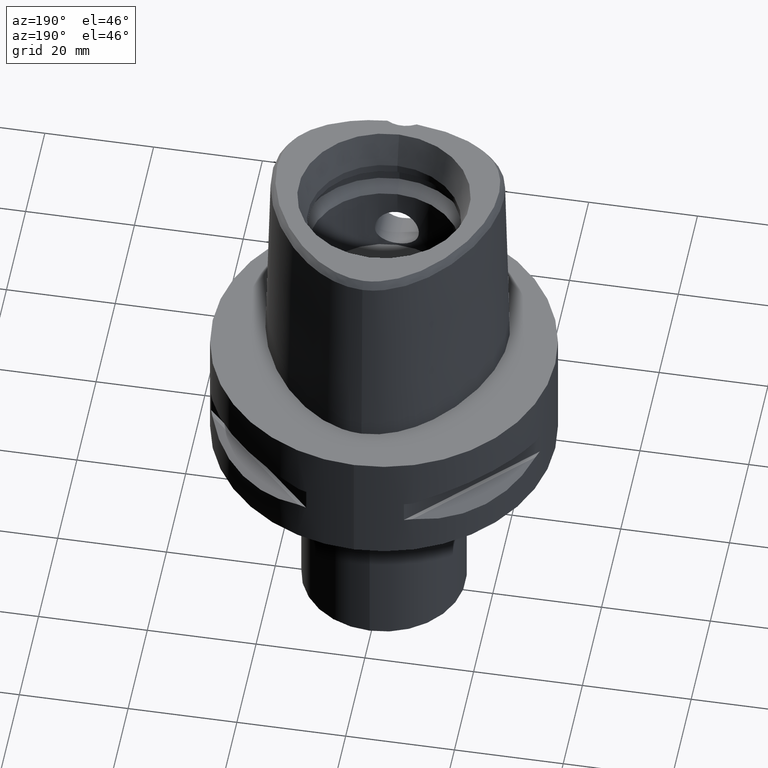
[diagram: clean part render]
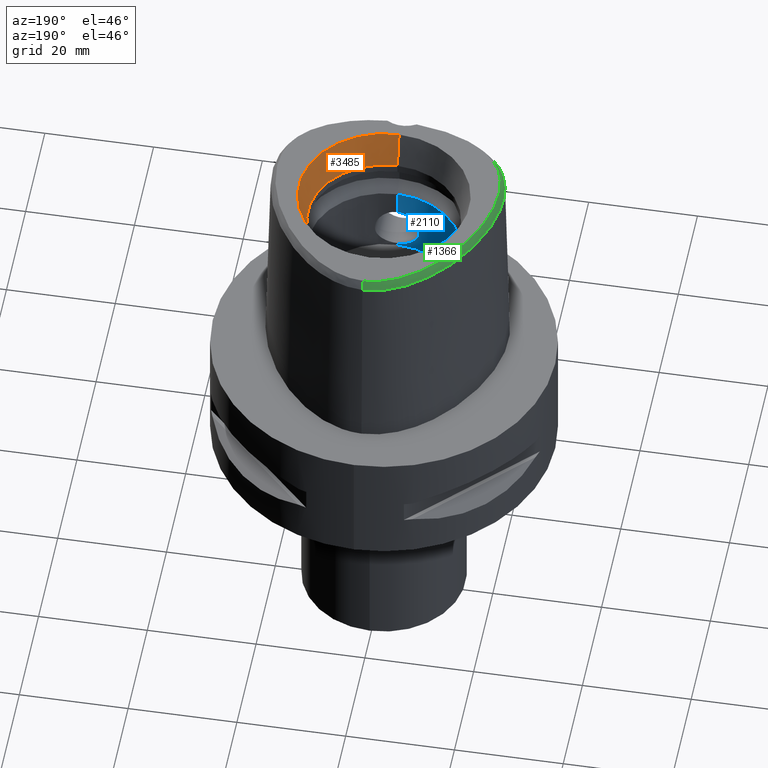
[diagram: same view with three faces highlighted in distinct colors, each labeled with its STEP entity id]
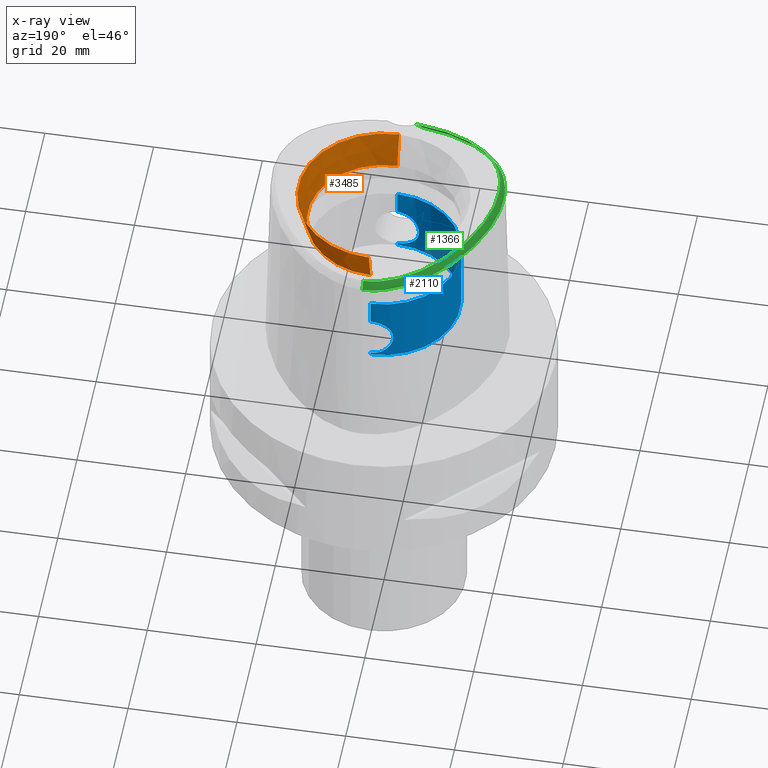
[diagram: x-ray of the same camera — body ghosted, the three highlighted faces saturated]
A machine part, auxiliary view with three faces highlighted in distinct colors.
The next image is the same camera in x-ray (body ghosted, the three faces saturated) — at least one of them is partly hidden behind the body in this view.
Their STEP definitions:

[orange] entity #3485 — the highlighted conical surface has half-angle 15 deg.
#47 = DIRECTION ( 'NONE',  ( 0.0000000000000000000, -1.000000000000000000, 0.0000000000000000000 ) ) ;
#110 = CARTESIAN_POINT ( 'NONE',  ( 0.0000000000000000000, -15.71487483155999776, 38.00000000000000000 ) ) ;
#375 = DIRECTION ( 'NONE',  ( 0.0000000000000000000, -1.000000000000000000, 0.0000000000000000000 ) ) ;
#404 = EDGE_CURVE ( 'NONE', #1311, #3284, #2336, .T. ) ;
#449 = DIRECTION ( 'NONE',  ( 0.0000000000000000000, -0.2588190451025869088, 0.9659258262890505486 ) ) ;
#533 = VECTOR ( 'NONE', #1629, 1000.000000000000000 ) ;
#563 = ORIENTED_EDGE ( 'NONE', *, *, #2974, .F. ) ;
#691 = AXIS2_PLACEMENT_3D ( 'NONE', #3370, #1172, #375 ) ;
#892 = EDGE_CURVE ( 'NONE', #3284, #1624, #3155, .T. ) ;
#1036 = CONICAL_SURFACE ( 'NONE', #3757, 14.85743741577999977, 0.2617993877991000029 ) ;
#1172 = DIRECTION ( 'NONE',  ( 0.0000000000000000000, 0.0000000000000000000, 1.000000000000000000 ) ) ;
#1182 = CIRCLE ( 'NONE', #3671, 14.00000000000000000 ) ;
#1311 = VERTEX_POINT ( 'NONE', #2810 ) ;
#1452 = DIRECTION ( 'NONE',  ( 0.0000000000000000000, 0.0000000000000000000, 1.000000000000000000 ) ) ;
#1624 = VERTEX_POINT ( 'NONE', #3962 ) ;
#1629 = DIRECTION ( 'NONE',  ( 0.0000000000000000000, 0.2588190451025869088, 0.9659258262890505486 ) ) ;
#1920 = DIRECTION ( 'NONE',  ( 0.0000000000000000000, 0.0000000000000000000, 1.000000000000000000 ) ) ;
#2118 = VERTEX_POINT ( 'NONE', #4485 ) ;
#2317 = CARTESIAN_POINT ( 'NONE',  ( 0.0000000000000000000, 0.0000000000000000000, 31.60000000000000142 ) ) ;
#2336 = LINE ( 'NONE', #3808, #4006 ) ;
#2748 = ORIENTED_EDGE ( 'NONE', *, *, #892, .T. ) ;
#2810 = CARTESIAN_POINT ( 'NONE',  ( 0.0000000000000000000, -14.00000000000000000, 31.60000000000000142 ) ) ;
#2974 = EDGE_CURVE ( 'NONE', #2118, #1624, #3407, .T. ) ;
#3014 = EDGE_CURVE ( 'NONE', #1311, #2118, #1182, .T. ) ;
#3155 = CIRCLE ( 'NONE', #691, 15.71487483155999776 ) ;
#3180 = ORIENTED_EDGE ( 'NONE', *, *, #404, .T. ) ;
#3256 = CARTESIAN_POINT ( 'NONE',  ( 0.0000000000000000000, 0.0000000000000000000, 34.79999999999999716 ) ) ;
#3284 = VERTEX_POINT ( 'NONE', #110 ) ;
#3370 = CARTESIAN_POINT ( 'NONE',  ( 0.0000000000000000000, 0.0000000000000000000, 38.00000000000000000 ) ) ;
#3407 = LINE ( 'NONE', #4188, #533 ) ;
#3485 = ADVANCED_FACE ( 'NONE', ( #4470 ), #1036, .F. ) ;
#3638 = DIRECTION ( 'NONE',  ( 0.0000000000000000000, 1.000000000000000000, 0.0000000000000000000 ) ) ;
#3671 = AXIS2_PLACEMENT_3D ( 'NONE', #2317, #1920, #47 ) ;
#3757 = AXIS2_PLACEMENT_3D ( 'NONE', #3256, #1452, #3638 ) ;
#3808 = CARTESIAN_POINT ( 'NONE',  ( 0.0000000000000000000, -14.00000000000000000, 31.60000000000000142 ) ) ;
#3923 = ORIENTED_EDGE ( 'NONE', *, *, #3014, .F. ) ;
#3962 = CARTESIAN_POINT ( 'NONE',  ( 0.0000000000000000000, 15.71487483155999776, 38.00000000000000000 ) ) ;
#4006 = VECTOR ( 'NONE', #449, 1000.000000000000000 ) ;
#4188 = CARTESIAN_POINT ( 'NONE',  ( 0.0000000000000000000, 14.00000000000000000, 31.60000000000000142 ) ) ;
#4470 = FACE_OUTER_BOUND ( 'NONE', #4769, .T. ) ;
#4485 = CARTESIAN_POINT ( 'NONE',  ( 0.0000000000000000000, 14.00000000000000000, 31.60000000000000142 ) ) ;
#4769 = EDGE_LOOP ( 'NONE', ( #563, #3923, #3180, #2748 ) ) ;

[blue] entity #2110 — the highlighted cylindrical surface (partial cylindrical patch) has radius 14 mm, axis along (0, 0, -1).
#27 = CARTESIAN_POINT ( 'NONE',  ( -3.956906030114303086, -13.42954116097252104, 16.37308277588229188 ) ) ;
#42 = CARTESIAN_POINT ( 'NONE',  ( -3.308857353606985630, -13.60476888281616148, 17.84038266119300431 ) ) ;
#60 = CARTESIAN_POINT ( 'NONE',  ( -3.800481831046894410, -13.47432518225151199, 16.90030419856389443 ) ) ;
#76 = VECTOR ( 'NONE', #3016, 1000.000000000000000 ) ;
#86 = CARTESIAN_POINT ( 'NONE',  ( -0.5002165306387791333, -13.99306941160688744, 11.47259211515042310 ) ) ;
#109 = CARTESIAN_POINT ( 'NONE',  ( -1.906127712798760365, -13.87050211784304743, 11.91663463313663662 ) ) ;
#150 = VECTOR ( 'NONE', #274, 1000.000000000000000 ) ;
#159 = CARTESIAN_POINT ( 'NONE',  ( 0.0000000000000000000, -14.00000000000000000, 19.55000000000000071 ) ) ;
#162 = CARTESIAN_POINT ( 'NONE',  ( 0.0000000000000000000, 14.00000000000000000, 11.44999999999999929 ) ) ;
#171 = CARTESIAN_POINT ( 'NONE',  ( -3.923904715522862130, 13.43930040190115704, 16.53702396228977989 ) ) ;
#193 = CARTESIAN_POINT ( 'NONE',  ( -4.000060531151739873, 13.41681166886791488, 16.14769010787451009 ) ) ;
#201 = LINE ( 'NONE', #2518, #150 ) ;
#211 = CARTESIAN_POINT ( 'NONE',  ( -3.723915684196338560, 13.49572129630284856, 17.09222383565357006 ) ) ;
#235 = CARTESIAN_POINT ( 'NONE',  ( -3.707939128306263932, 13.50018645689122110, 17.12930628517867149 ) ) ;
#259 = ORIENTED_EDGE ( 'NONE', *, *, #1706, .F. ) ;
#263 = CARTESIAN_POINT ( 'NONE',  ( -1.515203698057739023, 13.91769465714773091, 19.25588551942930948 ) ) ;
#269 = VERTEX_POINT ( 'NONE', #854 ) ;
#274 = DIRECTION ( 'NONE',  ( 0.0000000000000000000, 0.0000000000000000000, 1.000000000000000000 ) ) ;
#283 = CARTESIAN_POINT ( 'NONE',  ( -2.389450047824358769, 13.79520026151766565, 12.21858353100592787 ) ) ;
#289 = VERTEX_POINT ( 'NONE', #162 ) ;
#292 = CARTESIAN_POINT ( 'NONE',  ( -2.389446648809132601, -13.79520106536877577, 18.78141821898178065 ) ) ;
#308 = VECTOR ( 'NONE', #4402, 1000.000000000000000 ) ;
#325 = ORIENTED_EDGE ( 'NONE', *, *, #1641, .F. ) ;
#358 = CARTESIAN_POINT ( 'NONE',  ( -3.039412996779030873, 13.66630396113589185, 12.82303563609891839 ) ) ;
#379 = CARTESIAN_POINT ( 'NONE',  ( -1.564549642765804549, 13.91218673639890646, 11.76439485243060368 ) ) ;
#405 = CARTESIAN_POINT ( 'NONE',  ( -3.768500799564115766, -13.48329970564981650, 16.98358641427046578 ) ) ;
#425 = CARTESIAN_POINT ( 'NONE',  ( -4.018754165703466441, -13.41116174618497503, 14.98166683554442891 ) ) ;
#447 = CARTESIAN_POINT ( 'NONE',  ( -0.8837341782083687480, -13.97227764642756576, 11.54545241343784490 ) ) ;
#473 = CARTESIAN_POINT ( 'NONE',  ( -1.520362065198747281, -13.91713293227078196, 11.74620086143208297 ) ) ;
#497 = CARTESIAN_POINT ( 'NONE',  ( -3.736992195419891694, -13.49207569253097638, 13.93878347987292798 ) ) ;
#575 = CARTESIAN_POINT ( 'NONE',  ( -2.365004139262350424, 13.79839112697095693, 18.79129620123516631 ) ) ;
#586 = EDGE_LOOP ( 'NONE', ( #913, #3989, #3416, #325, #995, #2246, #259, #3376 ) ) ;
#598 = CARTESIAN_POINT ( 'NONE',  ( -0.5002246343408118801, 13.99306916625227437, 19.52740718663828545 ) ) ;
#615 = AXIS2_PLACEMENT_3D ( 'NONE', #3439, #3540, #2006 ) ;
#626 = CARTESIAN_POINT ( 'NONE',  ( -2.820092450597650124, 13.71305933139857380, 18.40715921142899347 ) ) ;
#653 = LINE ( 'NONE', #1822, #2044 ) ;
#685 = DIRECTION ( 'NONE',  ( 0.0000000000000000000, -1.000000000000000000, 0.0000000000000000000 ) ) ;
#727 = CARTESIAN_POINT ( 'NONE',  ( -1.550931528250415914, 13.91371038378405167, 11.75872748114337973 ) ) ;
#753 = CARTESIAN_POINT ( 'NONE',  ( -3.011825339132172541, 13.67234815307081419, 12.79201452024111418 ) ) ;
#771 = CARTESIAN_POINT ( 'NONE',  ( -3.760633776706852949, -13.48550120947125386, 17.00338010923562493 ) ) ;
#791 = CYLINDRICAL_SURFACE ( 'NONE', #1268, 14.00000000000000000 ) ;
#803 = CARTESIAN_POINT ( 'NONE',  ( -3.662194529130577525, -13.51296010680294124, 13.76988440006019232 ) ) ;
#806 = CARTESIAN_POINT ( 'NONE',  ( 0.0000000000000000000, -14.00000000000000000, 24.19999999999999929 ) ) ;
#827 = CARTESIAN_POINT ( 'NONE',  ( -3.846244429065507120, -13.46168931087129828, 14.20129098624315134 ) ) ;
#852 = CARTESIAN_POINT ( 'NONE',  ( -3.707951131393549815, -13.50018294777810901, 13.87072104583482357 ) ) ;
#854 = CARTESIAN_POINT ( 'NONE',  ( 0.0000000000000000000, 14.00000000000000000, 24.19999999999999929 ) ) ;
#880 = CARTESIAN_POINT ( 'NONE',  ( -1.204267543688095410, -13.94802058705168513, 11.63261109102067792 ) ) ;
#910 = CARTESIAN_POINT ( 'NONE',  ( -3.736981488735590329, 13.49207881892740346, 17.06124214799801209 ) ) ;
#913 = ORIENTED_EDGE ( 'NONE', *, *, #3543, .F. ) ;
#931 = CARTESIAN_POINT ( 'NONE',  ( 0.0000000000000000000, 14.00000000000000000, 19.55000000000000071 ) ) ;
#959 = CARTESIAN_POINT ( 'NONE',  ( -3.388730636929349949, 13.58514715277105722, 13.27817361485312908 ) ) ;
#987 = CARTESIAN_POINT ( 'NONE',  ( -3.926568254064634722, 13.43839652154501785, 14.49884993441371961 ) ) ;
#995 = ORIENTED_EDGE ( 'NONE', *, *, #1306, .T. ) ;
#1012 = CARTESIAN_POINT ( 'NONE',  ( -3.760661004571367982, 13.48549350215279752, 13.99668800119947321 ) ) ;
#1037 = CARTESIAN_POINT ( 'NONE',  ( -2.643612062981095967, 13.75055428254721690, 12.41082256240614790 ) ) ;
#1063 = CARTESIAN_POINT ( 'NONE',  ( -3.119500261461973789, 13.64855162815749523, 12.91583738880830978 ) ) ;
#1083 = CARTESIAN_POINT ( 'NONE',  ( -1.932506670568681084, 13.86537588307282576, 11.93893830251131405 ) ) ;
#1098 = EDGE_CURVE ( 'NONE', #269, #1615, #1108, .T. ) ;
#1108 = CIRCLE ( 'NONE', #615, 14.00000000000000000 ) ;
#1140 = CARTESIAN_POINT ( 'NONE',  ( 0.0000000000000000000, 14.00000000000000000, 11.44999999999999929 ) ) ;
#1159 = CARTESIAN_POINT ( 'NONE',  ( -3.870845942631429004, -13.45438323253588031, 16.69309942807913671 ) ) ;
#1176 = CARTESIAN_POINT ( 'NONE',  ( -3.039384413108579430, -13.66631021445664551, 18.17699679647192923 ) ) ;
#1209 = CARTESIAN_POINT ( 'NONE',  ( -3.840459466404485322, -13.46304475413922930, 16.78892927420310954 ) ) ;
#1224 = CARTESIAN_POINT ( 'NONE',  ( 0.0000000000000000000, -14.00000000000000000, 11.00000000000000000 ) ) ;
#1232 = CARTESIAN_POINT ( 'NONE',  ( -3.293520567743636551, -13.60928079516194700, 13.12800047053514696 ) ) ;
#1254 = CARTESIAN_POINT ( 'NONE',  ( -3.693201417893738459, -13.50430909587965544, 13.83765813490277274 ) ) ;
#1268 = AXIS2_PLACEMENT_3D ( 'NONE', #3415, #1906, #685 ) ;
#1278 = B_SPLINE_CURVE_WITH_KNOTS ( 'NONE', 3,
 ( #931, #1288, #598, #2506, #3887, #1772, #2109, #1308, #2416, #2035, #2069, #263, #4690, #3261, #3986, #3552, #575, #3239, #2462, #1722, #3169, #2780, #626, #2437, #4721, #1355, #4256, #1681, #2142, #3189, #235, #211, #2850, #3591, #910, #3526, #3621, #171, #193, #4648, #1381, #4327, #2088, #1702, #2800, #987, #2869, #3911, #1747, #4666, #4351, #3572, #1012, #1326, #2819, #4298, #959, #2483, #3940, #1063, #358, #753, #4427, #3312, #1037, #283, #1867, #1083, #1504, #4093, #4795, #1850, #4064, #379, #2921, #727, #3334, #4446, #2558, #1140 ),
 .UNSPECIFIED., .F., .F.,
 ( 4, 2, 2, 1, 1, 1, 1, 2, 2, 2, 2, 2, 2, 2, 2, 2, 2, 1, 1, 1, 2, 2, 2, 2, 2, 2, 2, 1, 1, 1, 1, 2, 2, 2, 2, 2, 2, 2, 2, 2, 2, 1, 1, 1, 2, 2, 4 ),
 ( 0.0000000000000000000, 0.06250000000001595946, 0.09375000000002386980, 0.1093750000000277972, 0.1171875000000297817, 0.1210937500000309197, 0.1230468750000315026, 0.1240234375000318218, 0.1250000000000321410, 0.1875000000000422162, 0.2187500000000473233, 0.2343750000000499045, 0.2421875000000513756, 0.2500000000000528466, 0.3125000000000652256, 0.3437500000000717759, 0.3593750000000749956, 0.3671875000000766054, 0.3710937500000768274, 0.3730468750000769385, 0.3740234375000776046, 0.3750000000000782152, 0.4375000000000839329, 0.4687500000000872080, 0.5000000000000904832, 0.5625000000000970335, 0.5937500000001004752, 0.6093750000001022515, 0.6171875000001031397, 0.6210937500001035838, 0.6230468750001039169, 0.6240234375001039169, 0.6250000000001039169, 0.6875000000000859313, 0.7187500000000769385, 0.7343750000000726086, 0.7421875000000703881, 0.7500000000000681677, 0.8125000000000496270, 0.8437500000000405231, 0.8593750000000359712, 0.8671875000000338618, 0.8710937500000329736, 0.8730468750000324185, 0.8740234375000321965, 0.8750000000000319744, 1.000000000000000000 ),
 .UNSPECIFIED. ) ;
#1288 = CARTESIAN_POINT ( 'NONE',  ( -0.2466548190153166897, 14.00000000000000355, 19.55000000000000071 ) ) ;
#1306 = EDGE_CURVE ( 'NONE', #1927, #269, #201, .T. ) ;
#1308 = CARTESIAN_POINT ( 'NONE',  ( -1.411904134708690917, 13.92857992411527235, 19.29618940363253188 ) ) ;
#1326 = CARTESIAN_POINT ( 'NONE',  ( -3.758544468746163769, 13.48608538516827871, 13.99140743371996543 ) ) ;
#1355 = CARTESIAN_POINT ( 'NONE',  ( -3.505503715703572887, 13.55554253316461200, 17.53266645215969177 ) ) ;
#1381 = CARTESIAN_POINT ( 'NONE',  ( -4.043543081925863980, 13.40357431819985123, 15.76231990329428712 ) ) ;
#1400 = CARTESIAN_POINT ( 'NONE',  ( 0.0000000000000000000, -14.00000000000000000, 11.00000000000000000 ) ) ;
#1433 = CARTESIAN_POINT ( 'NONE',  ( 0.0000000000000000000, -14.00000000000000000, 11.44999999999999929 ) ) ;
#1470 = DIRECTION ( 'NONE',  ( 0.0000000000000000000, -1.000000000000000000, 0.0000000000000000000 ) ) ;
#1497 = CARTESIAN_POINT ( 'NONE',  ( 0.0000000000000000000, -14.00000000000000000, 19.55000000000000071 ) ) ;
#1504 = CARTESIAN_POINT ( 'NONE',  ( -1.778515845774432336, 13.88611614304350717, 11.86094902514301275 ) ) ;
#1531 = CARTESIAN_POINT ( 'NONE',  ( -2.820089282412139742, -13.71306001196627733, 12.59283768482284849 ) ) ;
#1540 = CARTESIAN_POINT ( 'NONE',  ( 0.0000000000000000000, 14.00000000000000000, 19.55000000000000071 ) ) ;
#1548 = CARTESIAN_POINT ( 'NONE',  ( -3.169292087236366573, -13.63723081011759675, 18.02268600158916101 ) ) ;
#1563 = LINE ( 'NONE', #3758, #76 ) ;
#1565 = CARTESIAN_POINT ( 'NONE',  ( -3.595392973090131949, -13.53239833112729507, 17.38299690757138904 ) ) ;
#1600 = CARTESIAN_POINT ( 'NONE',  ( -2.790608379291843022, -13.71906267793642442, 12.56456877596965960 ) ) ;
#1615 = VERTEX_POINT ( 'NONE', #806 ) ;
#1622 = CARTESIAN_POINT ( 'NONE',  ( -3.505519513872956683, -13.55553844489981685, 13.46736062904929554 ) ) ;
#1641 = EDGE_CURVE ( 'NONE', #1927, #289, #1278, .T. ) ;
#1681 = CARTESIAN_POINT ( 'NONE',  ( -3.639500401898386528, 13.51926306665664157, 17.27752663032640967 ) ) ;
#1702 = CARTESIAN_POINT ( 'NONE',  ( -4.028653400322666833, 13.40832283593411489, 15.01013044877856117 ) ) ;
#1706 = EDGE_CURVE ( 'NONE', #3430, #1615, #653, .T. ) ;
#1722 = CARTESIAN_POINT ( 'NONE',  ( -2.698727349104976359, 13.73729154771779370, 18.52010305024417747 ) ) ;
#1747 = CARTESIAN_POINT ( 'NONE',  ( -3.800508969931146730, 13.47431751251218834, 14.09976939419802733 ) ) ;
#1761 = CARTESIAN_POINT ( 'NONE',  ( -1.729052167053959144, -13.89249682018755472, 19.16273098292925070 ) ) ;
#1772 = CARTESIAN_POINT ( 'NONE',  ( -1.204288266694730325, 13.94801874689208709, 19.36738247865123697 ) ) ;
#1803 = CARTESIAN_POINT ( 'NONE',  ( -1.550946742147933710, -13.91370868898990842, 19.24126621196259634 ) ) ;
#1812 = EDGE_CURVE ( 'NONE', #2804, #3430, #2959, .T. ) ;
#1822 = CARTESIAN_POINT ( 'NONE',  ( 0.0000000000000000000, -14.00000000000000000, 19.55000000000000071 ) ) ;
#1850 = CARTESIAN_POINT ( 'NONE',  ( -1.623053855873601181, 13.90546507811544608, 11.78930499069249827 ) ) ;
#1867 = CARTESIAN_POINT ( 'NONE',  ( -2.042621844037280532, 13.84942500571617963, 12.00016251866317951 ) ) ;
#1906 = DIRECTION ( 'NONE',  ( 0.0000000000000000000, 0.0000000000000000000, -1.000000000000000000 ) ) ;
#1915 = CARTESIAN_POINT ( 'NONE',  ( -3.689679208711743374, -13.50533814742819416, 17.17980919515304450 ) ) ;
#1927 = VERTEX_POINT ( 'NONE', #1540 ) ;
#1935 = CARTESIAN_POINT ( 'NONE',  ( -1.495340290668395911, -13.91984138317013375, 11.73614755714287661 ) ) ;
#1961 = CARTESIAN_POINT ( 'NONE',  ( -1.012080046182976201, -13.96361441093618083, 11.57622335747488052 ) ) ;
#1990 = CARTESIAN_POINT ( 'NONE',  ( -3.923923215639515849, -13.43929517325710421, 14.46304168925747646 ) ) ;
#2006 = DIRECTION ( 'NONE',  ( 0.0000000000000000000, 1.000000000000000000, 0.0000000000000000000 ) ) ;
#2010 = CARTESIAN_POINT ( 'NONE',  ( -1.778529565825849090, -13.88611447591386217, 19.13904425421000255 ) ) ;
#2035 = CARTESIAN_POINT ( 'NONE',  ( -1.495366312344279747, 13.91983854541881449, 19.26384210531478658 ) ) ;
#2044 = VECTOR ( 'NONE', #2631, 1000.000000000000000 ) ;
#2053 = EDGE_CURVE ( 'NONE', #2469, #2702, #2125, .T. ) ;
#2069 = CARTESIAN_POINT ( 'NONE',  ( -1.507269927154354594, 13.91855424297386712, 19.25907643555737536 ) ) ;
#2088 = CARTESIAN_POINT ( 'NONE',  ( -4.050619630790833092, 13.40134605199373752, 15.26360984613615024 ) ) ;
#2109 = CARTESIAN_POINT ( 'NONE',  ( -1.300298980341730637, 13.93957179326206486, 19.33663124067450312 ) ) ;
#2110 = ADVANCED_FACE ( 'NONE', ( #3728 ), #791, .F. ) ;
#2125 = CIRCLE ( 'NONE', #2369, 14.00000000000000000 ) ;
#2142 = CARTESIAN_POINT ( 'NONE',  ( -3.662180981222145526, 13.51296399674578197, 17.23014429939858516 ) ) ;
#2195 = DIRECTION ( 'NONE',  ( 0.0000000000000000000, 0.0000000000000000000, -1.000000000000000000 ) ) ;
#2246 = ORIENTED_EDGE ( 'NONE', *, *, #1098, .T. ) ;
#2284 = CARTESIAN_POINT ( 'NONE',  ( -3.758517294131483943, -13.48609307876777841, 17.00866026802036046 ) ) ;
#2311 = CARTESIAN_POINT ( 'NONE',  ( -2.926374584437871906, -13.69077497432428636, 18.30015184686308771 ) ) ;
#2334 = CARTESIAN_POINT ( 'NONE',  ( -2.364991305642752284, -13.79839320976402561, 12.20869443601976556 ) ) ;
#2359 = CARTESIAN_POINT ( 'NONE',  ( -3.734850536162487966, -13.49267201175786290, 13.93366696904086588 ) ) ;
#2369 = AXIS2_PLACEMENT_3D ( 'NONE', #4557, #2195, #1470 ) ;
#2386 = CARTESIAN_POINT ( 'NONE',  ( -2.729350300587958245, -13.73129855227622542, 12.50752635195119566 ) ) ;
#2416 = CARTESIAN_POINT ( 'NONE',  ( -1.467571042624303379, 13.92279971706395614, 19.27481721059741560 ) ) ;
#2437 = CARTESIAN_POINT ( 'NONE',  ( -3.105603707054384266, 13.65361675660048135, 18.12401918583745086 ) ) ;
#2462 = CARTESIAN_POINT ( 'NONE',  ( -2.607001450740620729, 13.75490143149982103, 18.60042745302025224 ) ) ;
#2469 = VERTEX_POINT ( 'NONE', #1224 ) ;
#2483 = CARTESIAN_POINT ( 'NONE',  ( -3.308890358069991766, 13.60476100659443865, 13.15966369585623852 ) ) ;
#2495 = CARTESIAN_POINT ( 'NONE',  ( -1.029965935812795275, -13.97143648144675154, 19.45636067793594748 ) ) ;
#2506 = CARTESIAN_POINT ( 'NONE',  ( -0.8837490811715074113, 13.97227666500911702, 19.45454433462002797 ) ) ;
#2518 = CARTESIAN_POINT ( 'NONE',  ( 0.0000000000000000000, 14.00000000000000000, 19.55000000000000071 ) ) ;
#2547 = CARTESIAN_POINT ( 'NONE',  ( -0.4993807799513647616, -13.99999999999999822, 19.54999999999999005 ) ) ;
#2558 = CARTESIAN_POINT ( 'NONE',  ( -0.4993759576668399536, 14.00000000000000355, 11.44999999999999929 ) ) ;
#2569 = CARTESIAN_POINT ( 'NONE',  ( -1.549563034874964496, -13.91386313936285291, 19.24184090925644242 ) ) ;
#2631 = DIRECTION ( 'NONE',  ( 0.0000000000000000000, 0.0000000000000000000, 1.000000000000000000 ) ) ;
#2652 = CARTESIAN_POINT ( 'NONE',  ( -3.779352045229896540, -13.48025922620142580, 16.95585178232529699 ) ) ;
#2673 = CARTESIAN_POINT ( 'NONE',  ( -3.011797369818352887, -13.67235422262809053, 18.20801656414813863 ) ) ;
#2700 = CARTESIAN_POINT ( 'NONE',  ( -0.2466510149177937594, -14.00000000000000000, 11.45000000000000107 ) ) ;
#2702 = VERTEX_POINT ( 'NONE', #3359 ) ;
#2723 = CARTESIAN_POINT ( 'NONE',  ( -2.246670325940654855, -13.81790763408990053, 12.12764103348687250 ) ) ;
#2745 = CARTESIAN_POINT ( 'NONE',  ( -4.050612026745075589, -13.40134857578960137, 15.73651386223205684 ) ) ;
#2780 = CARTESIAN_POINT ( 'NONE',  ( -2.790611541794276729, 13.71906202204036518, 18.43542820444523045 ) ) ;
#2800 = CARTESIAN_POINT ( 'NONE',  ( -3.956928068899681961, 13.42953475699811428, 14.62701640517123991 ) ) ;
#2804 = VERTEX_POINT ( 'NONE', #3771 ) ;
#2819 = CARTESIAN_POINT ( 'NONE',  ( -3.689709512993203600, 13.50532953931931068, 13.82025738272697524 ) ) ;
#2850 = CARTESIAN_POINT ( 'NONE',  ( -3.731606376866245522, 13.49357592647397119, 17.07406112582060587 ) ) ;
#2869 = CARTESIAN_POINT ( 'NONE',  ( -3.870871925574927985, 13.45437585465373154, 14.30698471815791528 ) ) ;
#2880 = CARTESIAN_POINT ( 'NONE',  ( -1.932517541247339432, -13.86537454897474220, 19.06105573604702386 ) ) ;
#2921 = CARTESIAN_POINT ( 'NONE',  ( -1.556368591119558831, 13.91310341393628924, 11.76098602914492375 ) ) ;
#2933 = CARTESIAN_POINT ( 'NONE',  ( -1.556383820715489641, -13.91310171139691576, 19.23900763149358895 ) ) ;
#2959 = B_SPLINE_CURVE_WITH_KNOTS ( 'NONE', 3,
 ( #1433, #2700, #86, #447, #1961, #880, #4568, #4228, #3062, #1935, #4496, #3764, #473, #4541, #109, #2723, #2334, #3806, #4203, #3855, #2386, #1600, #1531, #3091, #1232, #1622, #3447, #4182, #803, #1254, #852, #3110, #4516, #2359, #497, #4593, #827, #1990, #3425, #425, #3474, #3829, #2745, #3381, #27, #3018, #1159, #1209, #60, #2652, #405, #4133, #771, #2284, #1915, #1565, #3402, #42, #1548, #3038, #1176, #2673, #4160, #2311, #3786, #292, #3651, #2880, #2010, #1761, #3132, #4615, #4339, #4051, #2933, #1803, #2569, #2495, #2547, #159 ),
 .UNSPECIFIED., .F., .F.,
 ( 4, 2, 2, 1, 1, 1, 1, 2, 2, 2, 2, 2, 2, 2, 2, 2, 2, 1, 1, 1, 2, 2, 2, 2, 2, 2, 2, 1, 1, 1, 1, 2, 2, 2, 2, 2, 2, 2, 2, 2, 2, 1, 1, 1, 2, 2, 4 ),
 ( 0.0000000000000000000, 0.06249999999998534506, 0.09374999999997805922, 0.1093749999999743261, 0.1171874999999724526, 0.1210937499999714534, 0.1230468749999709260, 0.1240234374999706762, 0.1249999999999704126, 0.1874999999999662492, 0.2187499999999641398, 0.2343749999999630573, 0.2421874999999626410, 0.2499999999999622524, 0.3124999999999585332, 0.3437499999999568678, 0.3593749999999560907, 0.3671874999999557021, 0.3710937499999557021, 0.3730468749999554801, 0.3740234374999555911, 0.3749999999999557021, 0.4374999999999707456, 0.4687499999999784617, 0.4999999999999862332, 0.5625000000000016653, 0.5937500000000097700, 0.6093750000000137668, 0.6171875000000153211, 0.6210937500000157652, 0.6230468750000159872, 0.6240234375000160982, 0.6250000000000162093, 0.6875000000000170974, 0.7187500000000178746, 0.7343750000000183187, 0.7421875000000184297, 0.7500000000000186517, 0.8125000000000219824, 0.8437500000000234257, 0.8593750000000239808, 0.8671875000000242029, 0.8710937500000242029, 0.8730468750000240918, 0.8740234375000239808, 0.8750000000000238698, 1.000000000000000000 ),
 .UNSPECIFIED. ) ;
#3016 = DIRECTION ( 'NONE',  ( 0.0000000000000000000, 0.0000000000000000000, 1.000000000000000000 ) ) ;
#3018 = CARTESIAN_POINT ( 'NONE',  ( -3.926544250362741462, -13.43840341170067809, 16.50124346560619415 ) ) ;
#3038 = CARTESIAN_POINT ( 'NONE',  ( -3.119470022471099835, -13.64855840211504301, 18.08419902770235055 ) ) ;
#3062 = CARTESIAN_POINT ( 'NONE',  ( -1.467545524671853618, -13.92280244998848460, 11.72517287145818088 ) ) ;
#3091 = CARTESIAN_POINT ( 'NONE',  ( -3.105613372042737907, -13.65361494270069009, 12.87599009389136029 ) ) ;
#3110 = CARTESIAN_POINT ( 'NONE',  ( -3.723927003431815930, -13.49571798370646825, 13.90780264225127816 ) ) ;
#3132 = CARTESIAN_POINT ( 'NONE',  ( -1.657888608506421946, -13.90127388953908394, 19.19521112714965483 ) ) ;
#3169 = CARTESIAN_POINT ( 'NONE',  ( -2.729354882996699150, 13.73129765807803970, 18.49246945570211764 ) ) ;
#3189 = CARTESIAN_POINT ( 'NONE',  ( -3.693188875394065818, 13.50431274470513188, 17.16236973614691763 ) ) ;
#3239 = CARTESIAN_POINT ( 'NONE',  ( -2.546062887312445788, 13.76614564050484191, 18.65054084080788499 ) ) ;
#3261 = CARTESIAN_POINT ( 'NONE',  ( -1.698870408031529999, 13.89763026185602968, 19.18134623289394369 ) ) ;
#3312 = CARTESIAN_POINT ( 'NONE',  ( -2.926400952253066734, 13.69076938801259580, 12.69987567283212648 ) ) ;
#3334 = CARTESIAN_POINT ( 'NONE',  ( -1.549547802518846051, 13.91386483467265123, 11.75815278284546395 ) ) ;
#3359 = CARTESIAN_POINT ( 'NONE',  ( 0.0000000000000000000, 14.00000000000000000, 11.00000000000000000 ) ) ;
#3376 = ORIENTED_EDGE ( 'NONE', *, *, #1812, .F. ) ;
#3381 = CARTESIAN_POINT ( 'NONE',  ( -4.028638793160877363, -13.40832729827401337, 15.98998462529794473 ) ) ;
#3402 = CARTESIAN_POINT ( 'NONE',  ( -3.388697219272442496, -13.58515539620305645, 17.72187716859248496 ) ) ;
#3415 = CARTESIAN_POINT ( 'NONE',  ( 0.0000000000000000000, 0.0000000000000000000, 39.89999999999999858 ) ) ;
#3416 = ORIENTED_EDGE ( 'NONE', *, *, #3630, .T. ) ;
#3425 = CARTESIAN_POINT ( 'NONE',  ( -4.000075768454110836, -13.41680719893998486, 14.85240226085984361 ) ) ;
#3430 = VERTEX_POINT ( 'NONE', #1497 ) ;
#3439 = CARTESIAN_POINT ( 'NONE',  ( 0.0000000000000000000, 0.0000000000000000000, 24.19999999999999929 ) ) ;
#3447 = CARTESIAN_POINT ( 'NONE',  ( -3.564605953575305186, -13.53975080665344066, 13.57429474277503090 ) ) ;
#3474 = CARTESIAN_POINT ( 'NONE',  ( -4.043550866656127951, -13.40357191804300463, 15.23779644834982072 ) ) ;
#3526 = CARTESIAN_POINT ( 'NONE',  ( -3.737428782198541022, 13.49195423915018921, 17.06017469371694872 ) ) ;
#3540 = DIRECTION ( 'NONE',  ( 0.0000000000000000000, 0.0000000000000000000, 1.000000000000000000 ) ) ;
#3543 = EDGE_CURVE ( 'NONE', #2469, #2804, #4741, .T. ) ;
#3552 = CARTESIAN_POINT ( 'NONE',  ( -2.246685681711071414, 13.81790526388306617, 18.87234865006410800 ) ) ;
#3572 = CARTESIAN_POINT ( 'NONE',  ( -3.763816020786967975, 13.48461080266144663, 14.00460469483527071 ) ) ;
#3591 = CARTESIAN_POINT ( 'NONE',  ( -3.734839725915320319, 13.49267517021845109, 17.06635880741376354 ) ) ;
#3621 = CARTESIAN_POINT ( 'NONE',  ( -3.846227420205063030, 13.46169399648214693, 16.79875482666856712 ) ) ;
#3630 = EDGE_CURVE ( 'NONE', #2702, #289, #1563, .T. ) ;
#3651 = CARTESIAN_POINT ( 'NONE',  ( -2.042629761598724780, -13.84942407219129201, 18.99983269041162259 ) ) ;
#3728 = FACE_OUTER_BOUND ( 'NONE', #586, .T. ) ;
#3758 = CARTESIAN_POINT ( 'NONE',  ( 0.0000000000000000000, 14.00000000000000000, 11.00000000000000000 ) ) ;
#3764 = CARTESIAN_POINT ( 'NONE',  ( -1.515177317308350258, -13.91769757079365277, 11.74410383822765347 ) ) ;
#3771 = CARTESIAN_POINT ( 'NONE',  ( 0.0000000000000000000, -14.00000000000000000, 11.44999999999999929 ) ) ;
#3786 = CARTESIAN_POINT ( 'NONE',  ( -2.643597638988035126, -13.75055695885758844, 18.58918763673441532 ) ) ;
#3806 = CARTESIAN_POINT ( 'NONE',  ( -2.546054095041426102, -13.76614717866298143, 12.34945201703956741 ) ) ;
#3829 = CARTESIAN_POINT ( 'NONE',  ( -4.049674501307005237, -13.40162627103487836, 15.36635650773866857 ) ) ;
#3855 = CARTESIAN_POINT ( 'NONE',  ( -2.698722058053350192, -13.73729255633728386, 12.47989221009415495 ) ) ;
#3887 = CARTESIAN_POINT ( 'NONE',  ( -1.012097271588060732, 13.96361312282445866, 19.42377228885069940 ) ) ;
#3911 = CARTESIAN_POINT ( 'NONE',  ( -3.840486197123802903, 13.46303719278017041, 14.21115010029238590 ) ) ;
#3940 = CARTESIAN_POINT ( 'NONE',  ( -3.169323179370065358, 13.63722372994037713, 12.97735298956372496 ) ) ;
#3986 = CARTESIAN_POINT ( 'NONE',  ( -1.906149707208643296, 13.87049911242354661, 19.08335334200905820 ) ) ;
#3989 = ORIENTED_EDGE ( 'NONE', *, *, #2053, .T. ) ;
#4051 = CARTESIAN_POINT ( 'NONE',  ( -1.564564892502159132, -13.91218502276479185, 19.23559876068753738 ) ) ;
#4064 = CARTESIAN_POINT ( 'NONE',  ( -1.583816269555682998, 13.91000426278477065, 11.77249706418296959 ) ) ;
#4093 = CARTESIAN_POINT ( 'NONE',  ( -1.729037758436283490, 13.89249855368967879, 11.83726221024063641 ) ) ;
#4133 = CARTESIAN_POINT ( 'NONE',  ( -3.763788790058403055, -13.48461850915772153, 16.99546384081476447 ) ) ;
#4160 = CARTESIAN_POINT ( 'NONE',  ( -2.954776355631268281, -13.68469571375279159, 18.27012162129171458 ) ) ;
#4182 = CARTESIAN_POINT ( 'NONE',  ( -3.639514522617948167, -13.51925906704537539, 13.72250228547399864 ) ) ;
#4203 = CARTESIAN_POINT ( 'NONE',  ( -2.606994047668413028, -13.75490276919392585, 12.39956627670961886 ) ) ;
#4228 = CARTESIAN_POINT ( 'NONE',  ( -1.411879627481390731, -13.92858245241789739, 11.70380149259974267 ) ) ;
#4256 = CARTESIAN_POINT ( 'NONE',  ( -3.564590511681406060, 13.53975498204043149, 17.42573385279047926 ) ) ;
#4298 = CARTESIAN_POINT ( 'NONE',  ( -3.595425883594557614, 13.53238947652263313, 13.61706506294775743 ) ) ;
#4327 = CARTESIAN_POINT ( 'NONE',  ( -4.049670202382229078, 13.40162762123658347, 15.63377659169459832 ) ) ;
#4339 = CARTESIAN_POINT ( 'NONE',  ( -1.583831542489689603, -13.91000252692461281, 19.22749644646897949 ) ) ;
#4351 = CARTESIAN_POINT ( 'NONE',  ( -3.768528032355158874, 13.48329200085856172, 14.01648275842771341 ) ) ;
#4402 = DIRECTION ( 'NONE',  ( 0.0000000000000000000, 0.0000000000000000000, 1.000000000000000000 ) ) ;
#4427 = CARTESIAN_POINT ( 'NONE',  ( -2.954802962749700335, 13.68469003215822077, 12.72990673742756407 ) ) ;
#4446 = CARTESIAN_POINT ( 'NONE',  ( -1.029955549565026329, 13.97143704362201611, 11.54363748341054752 ) ) ;
#4496 = CARTESIAN_POINT ( 'NONE',  ( -1.507243689980972690, -13.91855712619007157, 11.74091304437972560 ) ) ;
#4516 = CARTESIAN_POINT ( 'NONE',  ( -3.731617341615792949, -13.49357272051568302, 13.92596486949364198 ) ) ;
#4541 = CARTESIAN_POINT ( 'NONE',  ( -1.698845261959378350, -13.89763338804585580, 11.81864211418848143 ) ) ;
#4557 = CARTESIAN_POINT ( 'NONE',  ( 0.0000000000000000000, 0.0000000000000000000, 11.00000000000000000 ) ) ;
#4568 = CARTESIAN_POINT ( 'NONE',  ( -1.300276505269927441, -13.93957393244758336, 11.66336118478266926 ) ) ;
#4593 = CARTESIAN_POINT ( 'NONE',  ( -3.737439284381272042, -13.49195117028957291, 13.93985046377735415 ) ) ;
#4615 = CARTESIAN_POINT ( 'NONE',  ( -1.623069080466236214, -13.90546331245008993, 19.21068834990245477 ) ) ;
#4648 = CARTESIAN_POINT ( 'NONE',  ( -4.018740926442550432, 13.41116570099652705, 16.01843394293826250 ) ) ;
#4666 = CARTESIAN_POINT ( 'NONE',  ( -3.779379267271413045, 13.48025152869097099, 14.04421887130920510 ) ) ;
#4690 = CARTESIAN_POINT ( 'NONE',  ( -1.520388610921912242, 13.91712999085814495, 19.25378838690998506 ) ) ;
#4721 = CARTESIAN_POINT ( 'NONE',  ( -3.293506333417381970, 13.60928400914214897, 17.87201873051787970 ) ) ;
#4741 = LINE ( 'NONE', #1400, #308 ) ;
#4795 = CARTESIAN_POINT ( 'NONE',  ( -1.657873586154003043, 13.90127565564287337, 11.80478213172886548 ) ) ;

[green] entity #1366 — the highlighted face is a freeform B-spline surface patch.
#1 = CARTESIAN_POINT ( 'NONE',  ( -12.33828098408999807, -16.27133733523999837, 38.13029542329999799 ) ) ;
#12 = CARTESIAN_POINT ( 'NONE',  ( -8.182246109640999521, 19.88771344075000158, 36.39151832956000021 ) ) ;
#31 = CARTESIAN_POINT ( 'NONE',  ( -2.686406869799000230, -19.39235857931999973, 36.97111129169000066 ) ) ;
#35 = CARTESIAN_POINT ( 'NONE',  ( -9.146342756810998509, 19.21083711585999865, 36.39151776954999917 ) ) ;
#51 = CARTESIAN_POINT ( 'NONE',  ( -20.23432297576000138, 1.671755532014999934, 36.97111334571999208 ) ) ;
#69 = CARTESIAN_POINT ( 'NONE',  ( -19.04643176965999629, 4.347265772231000192, 37.55070286613000263 ) ) ;
#99 = CARTESIAN_POINT ( 'NONE',  ( -20.22821350859999967, -2.184933991391999619, 38.13029544369000234 ) ) ;
#104 = CARTESIAN_POINT ( 'NONE',  ( -19.78262210840561508, -8.543146992552070884, 38.00000000000520117 ) ) ;
#123 = CARTESIAN_POINT ( 'NONE',  ( -12.38370344972999959, 14.83982926324999951, 38.13029533893999456 ) ) ;
#143 = CARTESIAN_POINT ( 'NONE',  ( -17.84437593682999790, 7.213212846632999664, 37.55070331889000101 ) ) ;
#178 = CARTESIAN_POINT ( 'NONE',  ( -19.84232220592000218, -10.11789923625999954, 36.97111077899999998 ) ) ;
#197 = CARTESIAN_POINT ( 'NONE',  ( -18.90359516935999906, -11.17355353920000027, 37.55070308900999976 ) ) ;
#217 = CARTESIAN_POINT ( 'NONE',  ( -17.60664928019000186, -13.90258469978000022, 36.39151819954000189 ) ) ;
#245 = CARTESIAN_POINT ( 'NONE',  ( -20.69323802196000273, -8.822287956487000926, 36.39151826352000541 ) ) ;
#267 = CARTESIAN_POINT ( 'NONE',  ( -17.84953794644000169, -12.08992247830000011, 38.13029536009000253 ) ) ;
#287 = CARTESIAN_POINT ( 'NONE',  ( -2.084935541908000012, -19.08916938025999954, 37.55070328142000591 ) ) ;
#300 = CARTESIAN_POINT ( 'NONE',  ( -6.759433772716525013, 19.65454812513363692, 38.00000000000162714 ) ) ;
#311 = CARTESIAN_POINT ( 'NONE',  ( -11.68017387309999933, -17.68866437387999824, 36.39151803801999563 ) ) ;
#333 = CARTESIAN_POINT ( 'NONE',  ( -20.16012968311338938, -1.009698174524963132, 38.00000000000617462 ) ) ;
#340 = CARTESIAN_POINT ( 'NONE',  ( -2.127058546823000107, -19.77385465150999977, 36.39151916992000224 ) ) ;
#345 = CARTESIAN_POINT ( 'NONE',  ( -4.593667852783000605, 21.75658040608999855, 36.39151826217999997 ) ) ;
#356 = CARTESIAN_POINT ( 'NONE',  ( -18.31748213707436079, -11.58791794387519225, 37.99999999999428724 ) ) ;
#364 = CARTESIAN_POINT ( 'NONE',  ( -14.34925778745999914, -15.57185807593999982, 37.55070317073999320 ) ) ;
#368 = LINE ( 'NONE', #1489, #872 ) ;
#369 = CARTESIAN_POINT ( 'NONE',  ( -3.664347228404000401, 21.71608530122000147, 36.97111094887999627 ) ) ;
#382 = CARTESIAN_POINT ( 'NONE',  ( -3.550859484969000057, -18.97257150947000071, 37.55070327945000486 ) ) ;
#390 = CARTESIAN_POINT ( 'NONE',  ( -5.026666353511999752, 20.46405588451999691, 38.13029536892000237 ) ) ;
#414 = CARTESIAN_POINT ( 'NONE',  ( -2.716891227777999962, 21.27076634574000025, 38.13029536188999913 ) ) ;
#433 = CARTESIAN_POINT ( 'NONE',  ( -18.15411284624000032, 7.360838087127000939, 36.97111131147999430 ) ) ;
#457 = CARTESIAN_POINT ( 'NONE',  ( -12.14309059737000140, 16.59662460738999812, 36.39152204034000704 ) ) ;
#487 = CARTESIAN_POINT ( 'NONE',  ( -12.89495061061000136, 15.29761404161999927, 36.97111121174999226 ) ) ;
#499 = CARTESIAN_POINT ( 'NONE',  ( -2.376843896522006450, 22.39422508473719020, 36.52186244848005003 ) ) ;
#509 = CARTESIAN_POINT ( 'NONE',  ( -11.89898183616999994, 16.35548434062999945, 36.97111306177999523 ) ) ;
#530 = CARTESIAN_POINT ( 'NONE',  ( -21.25270949560999867, -2.084112122820999780, 36.39151785503000269 ) ) ;
#556 = CARTESIAN_POINT ( 'NONE',  ( -16.88208602982999906, -13.17112010049999782, 38.13029541577000003 ) ) ;
#580 = CARTESIAN_POINT ( 'NONE',  ( -20.07498358448999909, -7.010494339563000388, 38.13029542323999976 ) ) ;
#582 = VERTEX_POINT ( 'NONE', #1524 ) ;
#603 = CARTESIAN_POINT ( 'NONE',  ( -20.90983532887999985, -8.034165659148998273, 36.39151816174000231 ) ) ;
#635 = CARTESIAN_POINT ( 'NONE',  ( -18.61010926503000107, -10.99560920154000065, 38.13029539296999815 ) ) ;
#657 = CARTESIAN_POINT ( 'NONE',  ( -4.841745002206000237, -19.50986435208999836, 36.39151831973000384 ) ) ;
#679 = CARTESIAN_POINT ( 'NONE',  ( -16.30447441820999899, -15.04873852050000060, 36.39151842859000396 ) ) ;
#682 = CARTESIAN_POINT ( 'NONE',  ( -0.02688407832406000328, 22.30254604797999818, 36.97111086632999388 ) ) ;
#693 = CARTESIAN_POINT ( 'NONE',  ( -17.60426951087047343, 7.098774535281268783, 37.99999999999592859 ) ) ;
#702 = CARTESIAN_POINT ( 'NONE',  ( -13.29785183783999969, -15.78364350862000087, 38.13029541376999987 ) ) ;
#710 = CARTESIAN_POINT ( 'NONE',  ( -4.349282331482999808, 21.11519927835999866, 37.55070302785999559 ) ) ;
#725 = CARTESIAN_POINT ( 'NONE',  ( -3.470663397140000192E-11, 21.68728795390000030, 38.00000000000000000 ) ) ;
#730 = CARTESIAN_POINT ( 'NONE',  ( -10.14571815796000109, -17.17369012978000242, 38.13029520185999388 ) ) ;
#735 = CARTESIAN_POINT ( 'NONE',  ( -5.858089087628999714, 20.06383801668999922, 38.13029535779000412 ) ) ;
#757 = CARTESIAN_POINT ( 'NONE',  ( -11.28856347322000175, -16.73662871456999923, 38.13029542885999490 ) ) ;
#760 = CARTESIAN_POINT ( 'NONE',  ( -7.802436195163000576, 19.31608519838999882, 37.55070304667999892 ) ) ;
#772 = CARTESIAN_POINT ( 'NONE',  ( -0.7901461696981429972, 22.56201478746129396, 36.52186244848006424 ) ) ;
#789 = CARTESIAN_POINT ( 'NONE',  ( -9.912554826890001891, 18.17498785749000234, 36.97111162690000441 ) ) ;
#804 = CARTESIAN_POINT ( 'NONE',  ( -18.90964971338600620, -12.28759719904991599, 36.52186244848005714 ) ) ;
#812 = CARTESIAN_POINT ( 'NONE',  ( -20.53872702965000130, 0.3460257759959000090, 36.97111287023000159 ) ) ;
#821 = CARTESIAN_POINT ( 'NONE',  ( -18.24302769442318706, 5.671232572958364138, 38.00000000000151346 ) ) ;
#839 = CARTESIAN_POINT ( 'NONE',  ( -21.10168879041999901, -0.8671658869840999095, 36.39151879237999765 ) ) ;
#853 = CARTESIAN_POINT ( 'NONE',  ( -21.32871527669592737, -4.105831244394327229, 36.52186244848005714 ) ) ;
#862 = CARTESIAN_POINT ( 'NONE',  ( -17.53463902741999902, 7.065587606140000254, 38.13029532629999352 ) ) ;
#872 = VECTOR ( 'NONE', #3343, 1000.000000000000227 ) ;
#881 = CARTESIAN_POINT ( 'NONE',  ( -19.88562090098359647, 4.345879983791704149, 36.52186244848005714 ) ) ;
#893 = CARTESIAN_POINT ( 'NONE',  ( -15.11117054127999992, 13.11172566463999978, 36.39151899736000217 ) ) ;
#917 = CARTESIAN_POINT ( 'NONE',  ( -19.18956732406000043, 2.845730628060000100, 38.13029524284999638 ) ) ;
#927 = CARTESIAN_POINT ( 'NONE',  ( -2.682279906006999948, -18.78035848609999903, 38.00000000000000000 ) ) ;
#937 = CARTESIAN_POINT ( 'NONE',  ( -20.75038924381000172, -7.132673961306998933, 36.97111054602999758 ) ) ;
#957 = CARTESIAN_POINT ( 'NONE',  ( -7.599370508970439531, -18.01010694911665055, 38.00000000000148503 ) ) ;
#966 = CARTESIAN_POINT ( 'NONE',  ( -17.36512819673999886, -13.65876316668999912, 36.97111060494999890 ) ) ;
#992 = CARTESIAN_POINT ( 'NONE',  ( -17.39370866113999980, -12.63219960678000042, 38.13029540407000439 ) ) ;
#1016 = CARTESIAN_POINT ( 'NONE',  ( -18.92683333821999980, -10.43393479508000077, 38.13029543153000134 ) ) ;
#1031 = ORIENTED_EDGE ( 'NONE', *, *, #3337, .F. ) ;
#1045 = CARTESIAN_POINT ( 'NONE',  ( -19.70885746957999984, -8.520535118456999513, 38.13029541059999872 ) ) ;
#1061 = CARTESIAN_POINT ( 'NONE',  ( -15.00295592774096853, -14.82617991125522927, 38.00000000000409983 ) ) ;
#1067 = CARTESIAN_POINT ( 'NONE',  ( -9.201010793000000021, -18.56291221811000014, 36.39152240618999912 ) ) ;
#1072 = CARTESIAN_POINT ( 'NONE',  ( -2.967868707787000293, 22.26929306848999701, 36.39151886477000630 ) ) ;
#1081 = CARTESIAN_POINT ( 'NONE',  ( -13.40435640711518239, 13.76268382996875594, 37.99999999999878497 ) ) ;
#1089 = CARTESIAN_POINT ( 'NONE',  ( -13.46121982772000081, -16.08541789094000052, 37.55070301731999649 ) ) ;
#1106 = CARTESIAN_POINT ( 'NONE',  ( -17.91005512243773623, -12.13778127739976576, 37.99999999999980105 ) ) ;
#1115 = CARTESIAN_POINT ( 'NONE',  ( -3.586931253163999855, -19.31371980523000076, 36.97111122115999393 ) ) ;
#1124 = CARTESIAN_POINT ( 'NONE',  ( -5.167028323854999883, 20.77721228779000029, 37.55070317196000218 ) ) ;
#1144 = CARTESIAN_POINT ( 'NONE',  ( -10.25978391289000058, -17.49731426589000094, 37.55070374801000099 ) ) ;
#1148 = CARTESIAN_POINT ( 'NONE',  ( -2.129632547798000264, 22.10156101763000080, 36.97111065233000460 ) ) ;
#1163 = CARTESIAN_POINT ( 'NONE',  ( -15.35026131845000030, -15.32667834449999944, 36.97111127128000163 ) ) ;
#1166 = CARTESIAN_POINT ( 'NONE',  ( -4.471475092132999762, 21.43588984223000082, 36.97111064502000488 ) ) ;
#1177 = CARTESIAN_POINT ( 'NONE',  ( -4.467522189395044308, -19.48130287050689802, 36.52186244848005714 ) ) ;
#1192 = CARTESIAN_POINT ( 'NONE',  ( -17.72573398903999831, 8.967678542608998882, 36.39151866940999724 ) ) ;
#1201 = CARTESIAN_POINT ( 'NONE',  ( -0.6498990081534604668, 21.67378274708414665, 37.99999999999474909 ) ) ;
#1221 = CARTESIAN_POINT ( 'NONE',  ( -19.51730705978999580, 2.947330850319999751, 37.55070360668999996 ) ) ;
#1233 = CARTESIAN_POINT ( 'NONE',  ( -17.27359245833105206, 9.972912913898792198, 36.52186244848005714 ) ) ;
#1244 = CARTESIAN_POINT ( 'NONE',  ( -18.80471251864999971, 5.906858437273999840, 36.97111087089999870 ) ) ;
#1264 = CARTESIAN_POINT ( 'NONE',  ( -10.43751334368000094, 16.80944338756999912, 38.13029508897999875 ) ) ;
#1292 = CARTESIAN_POINT ( 'NONE',  ( -11.41076431378000144, 15.87320380710000123, 38.13029510465000271 ) ) ;
#1314 = CARTESIAN_POINT ( 'NONE',  ( -18.53594270816999767, -11.73977243550999994, 37.55070295625999677 ) ) ;
#1332 = CARTESIAN_POINT ( 'NONE',  ( -2.682279906006999948, -18.78035848609999903, 38.00000000000000000 ) ) ;
#1333 = CARTESIAN_POINT ( 'NONE',  ( -19.19708107369999794, -11.35149787685999989, 36.97111078503999693 ) ) ;
#1343 = EDGE_LOOP ( 'NONE', ( #2955, #1778, #2147, #1031 ) ) ;
#1363 = CARTESIAN_POINT ( 'NONE',  ( -19.83929597500000241, -10.91099630676999865, 36.39151800508999202 ) ) ;
#1366 = ADVANCED_FACE ( 'NONE', ( #2616 ), #3872, .F. ) ;
#1386 = CARTESIAN_POINT ( 'NONE',  ( -20.36511117115999880, -8.721703677144001077, 36.97111064588000318 ) ) ;
#1411 = B_SPLINE_CURVE_WITH_KNOTS ( 'NONE', 3,
 ( #3092, #1177, #1992, #2388, #1549, #3039, #2674, #804, #4161, #1936, #4204, #4135, #853, #2360, #881, #1233, #1963, #3426, #3858, #3830, #499, #772, #3475 ),
 .UNSPECIFIED., .F., .F.,
 ( 4, 1, 1, 1, 1, 1, 1, 1, 1, 1, 1, 1, 1, 1, 1, 1, 1, 1, 1, 1, 4 ),
 ( 0.0000000000000000000, 0.03580973941716267261, 0.1234633994701191395, 0.1672902294964397352, 0.2111170595229705238, 0.2549438895493962298, 0.2768573045626090967, 0.2987707195757166589, 0.3206841345890346640, 0.3425975496022475864, 0.3864243796286732646, 0.4302512096550988319, 0.4740780396815245101, 0.5617316997343758667, 0.6493853597872272232, 0.7370390198400786907, 0.8246926798929299363, 0.8685195099193555590, 0.9123463399458338063, 0.9561731699722595401, 1.000000000000000000 ),
 .UNSPECIFIED. ) ;
#1412 = CARTESIAN_POINT ( 'NONE',  ( -21.22437336316999890, -6.297131568105999833, 36.39151874048999957 ) ) ;
#1445 = CARTESIAN_POINT ( 'NONE',  ( -7.992341152402000937, 19.60189931957000198, 36.97111068811999957 ) ) ;
#1463 = CARTESIAN_POINT ( 'NONE',  ( -6.238659703181999916, -18.57949840464000246, 37.55070298652000105 ) ) ;
#1468 = CARTESIAN_POINT ( 'NONE',  ( -1.314083087940000061, 21.53443229731999864, 38.13029545538000065 ) ) ;
#1478 = CARTESIAN_POINT ( 'NONE',  ( -19.94188961899300949, 0.2242544969874438465, 38.00000000000859757 ) ) ;
#1483 = CARTESIAN_POINT ( 'NONE',  ( -8.908150516235000538, -17.57605257987999892, 38.13029507502000115 ) ) ;
#1489 = CARTESIAN_POINT ( 'NONE',  ( -1.349513592030000122E-11, 22.56201468012000078, 36.52186680743999858 ) ) ;
#1490 = CARTESIAN_POINT ( 'NONE',  ( 0.6473788610738999694, 22.62174673592999952, 36.39151781180000000 ) ) ;
#1500 = CARTESIAN_POINT ( 'NONE',  ( -19.54919922642005048, -9.228169790567553932, 38.00000000000513012 ) ) ;
#1509 = CARTESIAN_POINT ( 'NONE',  ( -2.713319889435000132, -19.73430659319999947, 36.39151927312000367 ) ) ;
#1520 = CARTESIAN_POINT ( 'NONE',  ( -8.532199666389999493, 18.38465764338999975, 38.13029545060999936 ) ) ;
#1524 = CARTESIAN_POINT ( 'NONE',  ( -1.349513592030000122E-11, 22.56201468012000078, 36.52186680743999858 ) ) ;
#1535 = CARTESIAN_POINT ( 'NONE',  ( -2.268520910805999602, -18.73423304273000056, 38.13029533291999940 ) ) ;
#1539 = CARTESIAN_POINT ( 'NONE',  ( -9.475174591332999441, 17.64614117038000174, 38.13029528636000265 ) ) ;
#1549 = CARTESIAN_POINT ( 'NONE',  ( -14.22011356155976891, -16.41829364186125773, 36.52186244848005714 ) ) ;
#1557 = CARTESIAN_POINT ( 'NONE',  ( -10.66931791160000031, 17.06244079373000133, 37.55070413728000034 ) ) ;
#1583 = CARTESIAN_POINT ( 'NONE',  ( -19.56962697107000082, 1.501067618019999994, 38.13029506868999619 ) ) ;
#1591 = CARTESIAN_POINT ( 'NONE',  ( -20.30498420086613720, -2.177378896258298280, 38.00000000000611067 ) ) ;
#1612 = CARTESIAN_POINT ( 'NONE',  ( -13.61086898071999940, 13.93031861189000153, 37.55070289459000321 ) ) ;
#1635 = CARTESIAN_POINT ( 'NONE',  ( -14.83474069370999970, 12.90845850309000120, 36.97111111529000027 ) ) ;
#1645 = CARTESIAN_POINT ( 'NONE',  ( -2.682279906006999948, -18.78035848609999903, 38.00000000000000000 ) ) ;
#1659 = CARTESIAN_POINT ( 'NONE',  ( -10.13124494467000147, 18.43941120103999864, 36.39151979716999818 ) ) ;
#1687 = CARTESIAN_POINT ( 'NONE',  ( -21.00975525381000253, -4.317103037631000007, 36.97111076774999816 ) ) ;
#1707 = CARTESIAN_POINT ( 'NONE',  ( -19.47694040715999719, -9.201125323633998931, 38.13029537194000085 ) ) ;
#1720 = CARTESIAN_POINT ( 'NONE',  ( -14.21001600787585950, -15.34519100085945986, 38.00000000000099476 ) ) ;
#1727 = CARTESIAN_POINT ( 'NONE',  ( -16.30936058478000206, -13.70666402763000136, 38.13029542394000515 ) ) ;
#1736 = VERTEX_POINT ( 'NONE', #2163 ) ;
#1754 = CARTESIAN_POINT ( 'NONE',  ( -20.32346098476000051, -4.310697619576999706, 38.13029539516999478 ) ) ;
#1776 = CARTESIAN_POINT ( 'NONE',  ( -19.79836892878000043, -9.321427082139001286, 37.55070316154999688 ) ) ;
#1778 = ORIENTED_EDGE ( 'NONE', *, *, #4435, .F. ) ;
#1790 = CARTESIAN_POINT ( 'NONE',  ( -8.930096025509769220, -17.65000298921079036, 38.00000000000324007 ) ) ;
#1796 = CARTESIAN_POINT ( 'NONE',  ( -2.105997044365000015, -19.43151201589000010, 36.97111122567000052 ) ) ;
#1818 = CARTESIAN_POINT ( 'NONE',  ( -20.38301517463009205, -3.278344853327535446, 38.00000000000156319 ) ) ;
#1830 = CARTESIAN_POINT ( 'NONE',  ( -10.37384966782000006, -17.82093840198999857, 36.97111229416000100 ) ) ;
#1847 = CARTESIAN_POINT ( 'NONE',  ( -2.735698246183283722, 21.34559102902393946, 38.00000000000134293 ) ) ;
#1856 = CARTESIAN_POINT ( 'NONE',  ( -0.6450646060632998502, 21.59677830246999974, 38.13029542776000369 ) ) ;
#1865 = CARTESIAN_POINT ( 'NONE',  ( -12.44116897271621092, 14.89128547409597658, 38.00000000000427747 ) ) ;
#1872 = CARTESIAN_POINT ( 'NONE',  ( -6.303525347377000543, -18.91643569999000007, 36.97111055036000238 ) ) ;
#1877 = CARTESIAN_POINT ( 'NONE',  ( -4.227089570833000742, 20.79450871448999649, 38.13029541070000050 ) ) ;
#1894 = CARTESIAN_POINT ( 'NONE',  ( -2.632580830526999982, -18.70846255155999671, 38.13029532880999994 ) ) ;
#1903 = CARTESIAN_POINT ( 'NONE',  ( -1.399414304543000087, 22.21552133529999651, 36.97111029228999968 ) ) ;
#1923 = CARTESIAN_POINT ( 'NONE',  ( -20.17278653125999810, 3.150531294839999941, 36.39152033437000000 ) ) ;
#1936 = CARTESIAN_POINT ( 'NONE',  ( -20.09619618741067271, -10.23243843868017500, 36.52186244848005714 ) ) ;
#1945 = CARTESIAN_POINT ( 'NONE',  ( -20.08385848418999942, -1.021244033272999951, 38.13029536775999873 ) ) ;
#1953 = CARTESIAN_POINT ( 'NONE',  ( -14.34402387965625003, 12.54761970512226021, 38.00000000000045475 ) ) ;
#1963 = CARTESIAN_POINT ( 'NONE',  ( -13.70645028111062125, 15.04851272300291676, 36.52186244848005714 ) ) ;
#1977 = CARTESIAN_POINT ( 'NONE',  ( -13.87726987377000043, 14.14656721521000193, 36.97111033982999828 ) ) ;
#1992 = CARTESIAN_POINT ( 'NONE',  ( -7.300578999876543129, -19.07170748891726220, 36.52186244848005714 ) ) ;
#2001 = CARTESIAN_POINT ( 'NONE',  ( -18.17189764092999837, 5.641393631954000121, 38.13029538210000169 ) ) ;
#2021 = CARTESIAN_POINT ( 'NONE',  ( -15.18268431359000026, 11.21447783811999876, 38.13029532861000348 ) ) ;
#2030 = CARTESIAN_POINT ( 'NONE',  ( -3.637738201363999835, -19.56971413236999879, 36.52186244848000030 ) ) ;
#2043 = CARTESIAN_POINT ( 'NONE',  ( -18.11873617875000164, -12.30281251993999980, 37.55070320238999670 ) ) ;
#2074 = CARTESIAN_POINT ( 'NONE',  ( -17.12360711328000207, -13.41494163359999980, 37.55070301035999591 ) ) ;
#2091 = CARTESIAN_POINT ( 'NONE',  ( -20.57629462076000237, -7.953354478536000194, 36.97111058077000223 ) ) ;
#2116 = CARTESIAN_POINT ( 'NONE',  ( -20.66660811928000285, -4.313900328604000300, 37.55070308145999292 ) ) ;
#2139 = CARTESIAN_POINT ( 'NONE',  ( -4.706994425064726428, -18.56721852572355047, 38.00000000000766676 ) ) ;
#2147 = ORIENTED_EDGE ( 'NONE', *, *, #3277, .F. ) ;
#2149 = CARTESIAN_POINT ( 'NONE',  ( -21.33437391233999847, -3.235534259749999642, 36.39151825482000646 ) ) ;
#2161 = CARTESIAN_POINT ( 'NONE',  ( -3.522896839653664625, -18.70811514173142953, 37.99999999999783995 ) ) ;
#2163 = CARTESIAN_POINT ( 'NONE',  ( -3.470663397140000192E-11, 21.68728795390000030, 38.00000000000000000 ) ) ;
#2166 = CARTESIAN_POINT ( 'NONE',  ( -15.54590486164999952, -15.60861835887999938, 36.39151924122000281 ) ) ;
#2182 = CARTESIAN_POINT ( 'NONE',  ( -17.45119705494254703, -12.68365517585195690, 38.00000000000129319 ) ) ;
#2189 = CARTESIAN_POINT ( 'NONE',  ( -12.77926996238999990, -17.20155122766000133, 36.39151810662000486 ) ) ;
#2193 = CARTESIAN_POINT ( 'NONE',  ( -6.173512450049999600, 20.67339652776000136, 36.97111106292000215 ) ) ;
#2208 = CARTESIAN_POINT ( 'NONE',  ( -1.323674540693986490, 21.61098849315359161, 38.00000000000640199 ) ) ;
#2222 = CARTESIAN_POINT ( 'NONE',  ( -2.314846519063999963, -19.41865973866999795, 36.97111125922999975 ) ) ;
#2227 = CARTESIAN_POINT ( 'NONE',  ( -0.02763029790288000151, 22.64573749184000206, 36.39151860815000106 ) ) ;
#2237 = CARTESIAN_POINT ( 'NONE',  ( -4.254559144977116958, 20.86660163697317216, 37.99999999999730704 ) ) ;
#2244 = CARTESIAN_POINT ( 'NONE',  ( -7.581112376189000024, -17.93516197218999864, 38.13029517197000473 ) ) ;
#2249 = CARTESIAN_POINT ( 'NONE',  ( -6.331224131261000032, 20.97817578329999932, 36.39151891549000339 ) ) ;
#2269 = CARTESIAN_POINT ( 'NONE',  ( -11.54963707314000132, -17.37131915411000094, 36.97111050163000101 ) ) ;
#2274 = CARTESIAN_POINT ( 'NONE',  ( -7.242979049811999914, 20.47499046743000051, 36.39151829309999897 ) ) ;
#2299 = CARTESIAN_POINT ( 'NONE',  ( -3.561074038322999513, 21.38880417756000085, 37.55070316055000035 ) ) ;
#2321 = CARTESIAN_POINT ( 'NONE',  ( -20.87493656990000090, 0.4146217872391000370, 36.39152174088999914 ) ) ;
#2328 = CARTESIAN_POINT ( 'NONE',  ( -20.40060226222944451, -4.311417605381488549, 38.00000000000808598 ) ) ;
#2345 = CARTESIAN_POINT ( 'NONE',  ( -16.03996580028000096, 11.78424769200999833, 36.39151927564999767 ) ) ;
#2351 = CARTESIAN_POINT ( 'NONE',  ( -16.88647904405013378, 8.517821442302112800, 38.00000000000505196 ) ) ;
#2360 = CARTESIAN_POINT ( 'NONE',  ( -21.07430010672411669, -0.4408303445192567338, 36.52186244848005714 ) ) ;
#2376 = CARTESIAN_POINT ( 'NONE',  ( -18.48830507978999904, 5.774126034614000424, 37.55070312649999664 ) ) ;
#2388 = CARTESIAN_POINT ( 'NONE',  ( -10.91891098964929796, -18.03046406390449974, 36.52186244848005714 ) ) ;
#2400 = CARTESIAN_POINT ( 'NONE',  ( -17.12090800694999970, 8.643479961333000006, 37.55070314161999789 ) ) ;
#2424 = CARTESIAN_POINT ( 'NONE',  ( -15.46844480915000020, 11.40440112274999862, 37.55070331095999592 ) ) ;
#2435 = CARTESIAN_POINT ( 'NONE',  ( -13.33457781969794098, -15.85148397417505883, 38.00000000000770228 ) ) ;
#2443 = CARTESIAN_POINT ( 'NONE',  ( -18.81775649907000059, -11.93566448933999880, 36.97111048106000197 ) ) ;
#2467 = CARTESIAN_POINT ( 'NONE',  ( -17.90515929428999797, -13.08997867555000028, 36.97111069740999767 ) ) ;
#2490 = CARTESIAN_POINT ( 'NONE',  ( -20.99156599306999738, -3.250960418070000024, 36.97111064031999916 ) ) ;
#2511 = CARTESIAN_POINT ( 'NONE',  ( -21.08809207347000125, -7.193763772180000515, 36.39151810743000226 ) ) ;
#2542 = CARTESIAN_POINT ( 'NONE',  ( -19.09957028995999906, -12.13155654316999943, 36.39151800584999563 ) ) ;
#2556 = CARTESIAN_POINT ( 'NONE',  ( -11.46564124494451598, 15.92741340513113535, 37.99999999999733546 ) ) ;
#2562 = CARTESIAN_POINT ( 'NONE',  ( -9.103390700744999009, -18.23395900537000003, 36.97111329580000216 ) ) ;
#2568 = CARTESIAN_POINT ( 'NONE',  ( 0.6283552345101999226, 22.27930068012999953, 36.97111035692999792 ) ) ;
#2577 = CARTESIAN_POINT ( 'NONE',  ( -16.09805956313440944, 9.908742513516326511, 38.00000000000704858 ) ) ;
#2583 = CARTESIAN_POINT ( 'NONE',  ( -6.368390991572000281, -19.25337299533999769, 36.39151811418999927 ) ) ;
#2587 = CARTESIAN_POINT ( 'NONE',  ( 0.4267037931229000214, 22.63327452868999856, 36.39151828314000170 ) ) ;
#2600 = CARTESIAN_POINT ( 'NONE',  ( -18.99520880204025985, -10.46968343926366174, 38.00000000000133582 ) ) ;
#2612 = CARTESIAN_POINT ( 'NONE',  ( -14.52887946270999997, -15.86425824399000106, 36.97111097220000175 ) ) ;
#2616 = FACE_OUTER_BOUND ( 'NONE', #1343, .T. ) ;
#2634 = CARTESIAN_POINT ( 'NONE',  ( -16.98946107197000188, -14.47961540322999952, 36.39151809879999888 ) ) ;
#2640 = CARTESIAN_POINT ( 'NONE',  ( -0.6880742962425000497, 22.28185522580000111, 36.97111051028999640 ) ) ;
#2653 = CARTESIAN_POINT ( 'NONE',  ( -3.339321438891323712, -19.25325016376737608, 37.10705438585232940 ) ) ;
#2659 = CARTESIAN_POINT ( 'NONE',  ( -0.7095791413320999830, 22.62439368747000046, 36.39151805155000119 ) ) ;
#2663 = VERTEX_POINT ( 'NONE', #3743 ) ;
#2674 = CARTESIAN_POINT ( 'NONE',  ( -17.90324032096840767, -13.53935111955584603, 36.52186244848005714 ) ) ;
#2686 = CARTESIAN_POINT ( 'NONE',  ( -20.56667097810999678, 1.757099489013000060, 36.39152248423000202 ) ) ;
#2693 = CARTESIAN_POINT ( 'NONE',  ( -10.48962422759448820, 16.86631853278967341, 38.00000000000508749 ) ) ;
#2712 = CARTESIAN_POINT ( 'NONE',  ( -20.42313525293999632, -0.9698846511763999922, 37.55070317596999985 ) ) ;
#2733 = CARTESIAN_POINT ( 'NONE',  ( -20.91121083326999752, -2.117719412345000052, 36.97111038458999843 ) ) ;
#2760 = CARTESIAN_POINT ( 'NONE',  ( -15.75420530471999925, 11.59432440737999848, 36.97111129330999546 ) ) ;
#2785 = CARTESIAN_POINT ( 'NONE',  ( -13.34446808767000014, 13.71407000857000114, 38.13029544935000104 ) ) ;
#2806 = CARTESIAN_POINT ( 'NONE',  ( -20.15575549861000226, -10.25772433737999911, 36.39151847163000042 ) ) ;
#2817 = CARTESIAN_POINT ( 'NONE',  ( -2.841965291530445636, -18.76757795571749554, 37.99999999999900524 ) ) ;
#2826 = CARTESIAN_POINT ( 'NONE',  ( -20.30595015453000229, -3.281812734710000345, 38.13029541130000410 ) ) ;
#2854 = CARTESIAN_POINT ( 'NONE',  ( -18.25412891727000186, -11.54388038167999930, 38.13029543145999867 ) ) ;
#2874 = CARTESIAN_POINT ( 'NONE',  ( -19.21545562054999934, -9.838249034029999507, 38.13029539373999910 ) ) ;
#2889 = CARTESIAN_POINT ( 'NONE',  ( -6.188376196366050408, -18.31830638231027564, 37.99999999999860023 ) ) ;
#2895 = CARTESIAN_POINT ( 'NONE',  ( -20.54306078289000226, -6.214103173843999350, 37.55070316147000398 ) ) ;
#2918 = CARTESIAN_POINT ( 'NONE',  ( -19.26324493738781030, 2.868570891456814209, 38.00000000000488853 ) ) ;
#2927 = CARTESIAN_POINT ( 'NONE',  ( -2.291683714934999561, -19.07644639069999926, 37.55070329608000179 ) ) ;
#2932 = CARTESIAN_POINT ( 'NONE',  ( 0.4139597147067000105, 22.29046437078999787, 36.97111065842999977 ) ) ;
#2947 = CARTESIAN_POINT ( 'NONE',  ( -4.744634284367999832, -18.83052764862000217, 37.55070304393999692 ) ) ;
#2951 = CARTESIAN_POINT ( 'NONE',  ( -2.002764923701000122, 21.42698407438999553, 38.13029540978000398 ) ) ;
#2955 = ORIENTED_EDGE ( 'NONE', *, *, #4107, .T. ) ;
#2962 = CARTESIAN_POINT ( 'NONE',  ( -9.524337278000837514, 17.70558492631499803, 37.99999999999933209 ) ) ;
#2969 = CARTESIAN_POINT ( 'NONE',  ( -10.48791542274000044, -18.14456253810000064, 36.39152084031000101 ) ) ;
#2975 = CARTESIAN_POINT ( 'NONE',  ( 0.4012156362904999996, 21.94765421290000162, 37.55070303371999785 ) ) ;
#3002 = CARTESIAN_POINT ( 'NONE',  ( -16.09310716495000193, -14.77837641170000005, 36.97111075147000037 ) ) ;
#3023 = CARTESIAN_POINT ( 'NONE',  ( -2.338009323194000011, -19.76087308664000375, 36.39151922239000214 ) ) ;
#3027 = CARTESIAN_POINT ( 'NONE',  ( -9.693864709112000710, 17.91056451392999804, 37.55070345663000353 ) ) ;
#3039 = CARTESIAN_POINT ( 'NONE',  ( -16.39211280191971198, -14.95758113318713889, 36.52186244848005714 ) ) ;
#3047 = CARTESIAN_POINT ( 'NONE',  ( -14.14367076681999791, 14.36281581852000144, 36.39151778507000046 ) ) ;
#3053 = CARTESIAN_POINT ( 'NONE',  ( -5.893543501600595036, 20.13235399351918886, 38.00000000000662226 ) ) ;
#3079 = CARTESIAN_POINT ( 'NONE',  ( -16.32628481884000138, 10.04534483996000027, 37.55070304041999663 ) ) ;
#3085 = CARTESIAN_POINT ( 'NONE',  ( -19.64434054692850040, 1.520253387635452036, 37.99999999999685230 ) ) ;
#3092 = CARTESIAN_POINT ( 'NONE',  ( -3.637738201363999835, -19.56971413236999879, 36.52186244848000030 ) ) ;
#3101 = CARTESIAN_POINT ( 'NONE',  ( -19.84504679553000273, 3.048931072580000290, 36.97111197052999643 ) ) ;
#3121 = CARTESIAN_POINT ( 'NONE',  ( -10.90112247951999969, 17.31543819987999910, 36.97111318558000193 ) ) ;
#3134 = CARTESIAN_POINT ( 'NONE',  ( -3.014271304876825930, -18.99139391534682986, 37.59976690302566027 ) ) ;
#3153 = CARTESIAN_POINT ( 'NONE',  ( -16.62069503744000087, 10.22156162483999964, 36.97111067378000371 ) ) ;
#3174 = CARTESIAN_POINT ( 'NONE',  ( -20.41268641414999863, -7.071584150435000105, 37.55070298464000444 ) ) ;
#3194 = CARTESIAN_POINT ( 'NONE',  ( -20.11979745041000101, -9.441728840642999998, 36.97111095116999735 ) ) ;
#3216 = CARTESIAN_POINT ( 'NONE',  ( -16.53606074717999874, -13.96431448615999926, 37.55070298223000691 ) ) ;
#3243 = CARTESIAN_POINT ( 'NONE',  ( -20.88371707302999880, -6.255617370975000036, 36.97111095097999822 ) ) ;
#3264 = CARTESIAN_POINT ( 'NONE',  ( -20.64875807379999628, -3.266386576389999963, 37.55070302580999453 ) ) ;
#3277 = EDGE_CURVE ( 'NONE', #2663, #582, #1411, .T. ) ;
#3280 = CARTESIAN_POINT ( 'NONE',  ( -12.37132652997371096, -16.34104299088200918, 37.99999999999680966 ) ) ;
#3287 = CARTESIAN_POINT ( 'NONE',  ( -15.67037265840999893, -14.23765219411999894, 38.13029539722000294 ) ) ;
#3294 = CARTESIAN_POINT ( 'NONE',  ( -2.066198735748999926, 21.76427254601000172, 37.55070303104999851 ) ) ;
#3318 = CARTESIAN_POINT ( 'NONE',  ( -6.173794058986000088, -18.24256110928999775, 38.13029542269000416 ) ) ;
#3324 = CARTESIAN_POINT ( 'NONE',  ( -0.02613785874523999811, 21.95935460412000140, 37.55070312449999648 ) ) ;
#3332 = CARTESIAN_POINT ( 'NONE',  ( -18.67608643721582240, -11.03561202290908838, 37.99999999999977263 ) ) ;
#3337 = EDGE_CURVE ( 'NONE', #4663, #2663, #4257, .T. ) ;
#3341 = CARTESIAN_POINT ( 'NONE',  ( -7.743547486189999773, -18.60191665718000209, 36.97111253021000010 ) ) ;
#3343 = DIRECTION ( 'NONE',  ( -1.234976017934016758E-11, -0.5092834681090075977, 0.8605988316927122295 ) ) ;
#3344 = CARTESIAN_POINT ( 'NONE',  ( -5.447752264540000056, 21.40352509431999906, 36.39151877802999735 ) ) ;
#3352 = CARTESIAN_POINT ( 'NONE',  ( -19.98419490691558309, -7.809898894995634500, 38.00000000000144240 ) ) ;
#3357 = CARTESIAN_POINT ( 'NONE',  ( -13.78795580749000038, -16.68896665559000070, 36.39151822442000395 ) ) ;
#3362 = CARTESIAN_POINT ( 'NONE',  ( -7.612531237923999328, 19.03027107720999922, 38.13029540524000538 ) ) ;
#3387 = CARTESIAN_POINT ( 'NONE',  ( -12.48527731019000164, -16.58140863270999787, 37.55070298441000176 ) ) ;
#3391 = CARTESIAN_POINT ( 'NONE',  ( -8.941628393338000080, 18.93544395836999783, 36.97111032990000012 ) ) ;
#3412 = CARTESIAN_POINT ( 'NONE',  ( -19.90197497341999977, 1.586411575017999898, 37.55070420721000346 ) ) ;
#3426 = CARTESIAN_POINT ( 'NONE',  ( -10.15538788052612951, 18.47129535093738895, 36.52186244848005714 ) ) ;
#3432 = CARTESIAN_POINT ( 'NONE',  ( -18.72401866958000127, 4.229863224837000502, 38.13029545759999905 ) ) ;
#3437 = CARTESIAN_POINT ( 'NONE',  ( -20.36398648679467982, -5.278470727085230685, 38.00000000000089528 ) ) ;
#3461 = CARTESIAN_POINT ( 'NONE',  ( -20.20251748939000080, 0.2774297647527000366, 37.55070399957000404 ) ) ;
#3469 = CARTESIAN_POINT ( 'NONE',  ( -16.36032397153372031, -13.76458520345274650, 38.00000000000284928 ) ) ;
#3475 = CARTESIAN_POINT ( 'NONE',  ( -1.349513592030000122E-11, 22.56201468012000078, 36.52186680743999858 ) ) ;
#3487 = CARTESIAN_POINT ( 'NONE',  ( -11.13292704742999994, 17.56843560604000132, 36.39152223388000351 ) ) ;
#3490 = B_SPLINE_CURVE_WITH_KNOTS ( 'NONE', 3,
 ( #927, #2817, #2161, #2139, #2889, #957, #1790, #4372, #3640, #3280, #2435, #1720, #1061, #3694, #3469, #3659, #2182, #1106, #356, #3332, #2600, #4177, #1500, #104, #3352, #4444, #4814, #3437, #2328, #1818, #1591, #333, #1478, #3085, #2918, #4425, #821, #693, #2351, #2577, #4404, #1953, #1081, #1865, #2556, #2693, #2962, #3820, #4792, #300, #3053, #3761, #2237, #4039, #1847, #4061, #2208, #1201, #4091, #725 ),
 .UNSPECIFIED., .F., .F.,
 ( 4, 1, 1, 1, 1, 1, 1, 1, 1, 1, 1, 1, 1, 1, 1, 1, 1, 1, 1, 1, 1, 1, 1, 1, 1, 1, 1, 1, 1, 1, 1, 1, 1, 1, 1, 1, 1, 1, 1, 1, 1, 1, 1, 1, 1, 1, 1, 1, 1, 1, 1, 1, 1, 1, 1, 1, 1, 4 ),
 ( 0.0000000000000000000, 0.005420919554200098744, 0.02318126027639999531, 0.04094160099879995407, 0.05870194172099996166, 0.07646228244330000035, 0.09422262316550000794, 0.1119829638877999356, 0.1297433046099999432, 0.1475036453321999508, 0.1652639860544999895, 0.1830243267768000281, 0.2007846674991000668, 0.2185450082212999634, 0.2363053489436000021, 0.2540656896658000097, 0.2718260303881000484, 0.2895863711103000560, 0.3073467118325999836, 0.3251070525547999912, 0.3428673932771000299, 0.3606277339994000686, 0.3783880747216000762, 0.3961484154438998928, 0.4139087561661000114, 0.4316690968884000501, 0.4494294376106000577, 0.4671897783328999854, 0.4849501190552000240, 0.5027104597774000316, 0.5204708004996999593, 0.5382311412219000779, 0.5559914819442000056, 0.5737518226664000132, 0.5915121633886999408, 0.6092725041108999484, 0.6270328448331999871, 0.6447931855555000258, 0.6625535262777000334, 0.6803138669999999610, 0.6980742077221999686, 0.7158345484445000073, 0.7335948891667000149, 0.7513552298890000536, 0.7691155706112000612, 0.7868759113336000199, 0.8046362520558000275, 0.8223965927780999552, 0.8401569335002999628, 0.8579172742224999704, 0.8756776149448000091, 0.8934379556670000166, 0.9111982963893099363, 0.9289586371115700070, 0.9467189778338299666, 0.9644793185560800453, 0.9822396592783400049, 1.000000000000000000 ),
 .UNSPECIFIED. ) ;
#3509 = CARTESIAN_POINT ( 'NONE',  ( -14.55831084615000037, 12.70519134154000085, 37.55070323322000547 ) ) ;
#3536 = CARTESIAN_POINT ( 'NONE',  ( -18.38793441106000159, -12.51570256159000039, 36.97111104468000065 ) ) ;
#3558 = CARTESIAN_POINT ( 'NONE',  ( -20.03698432036999932, -8.621119397799999362, 37.55070302824000095 ) ) ;
#3576 = CARTESIAN_POINT ( 'NONE',  ( -17.64943397771000022, -12.86108914116999991, 37.55070305073999748 ) ) ;
#3599 = CARTESIAN_POINT ( 'NONE',  ( -21.31435235036000009, -5.340079599513000375, 36.39151926882999533 ) ) ;
#3626 = CARTESIAN_POINT ( 'NONE',  ( -19.90921320454000210, -7.791732117310000483, 38.13029541883999940 ) ) ;
#3640 = CARTESIAN_POINT ( 'NONE',  ( -11.31790883120980595, -16.80796958613539971, 37.99999999999961631 ) ) ;
#3645 = CARTESIAN_POINT ( 'NONE',  ( -3.623003021358000009, -19.65486810099000081, 36.39151916288000166 ) ) ;
#3659 = CARTESIAN_POINT ( 'NONE',  ( -16.93638123745052582, -13.22593246127959787, 37.99999999999344880 ) ) ;
#3668 = CARTESIAN_POINT ( 'NONE',  ( -11.41910027317999976, -17.05397393434000008, 37.55070296525000373 ) ) ;
#3676 = CARTESIAN_POINT ( 'NONE',  ( -6.720264083070000005, 19.58808801593000126, 38.13029540820000562 ) ) ;
#3694 = CARTESIAN_POINT ( 'NONE',  ( -15.71788912668890781, -14.29843101566115493, 37.99999999999678124 ) ) ;
#3701 = CARTESIAN_POINT ( 'NONE',  ( -4.793189643286999591, -19.17019600036000071, 36.97111068184000260 ) ) ;
#3704 = CARTESIAN_POINT ( 'NONE',  ( 0.3884715578742999886, 21.60484405500000094, 38.13029540901000303 ) ) ;
#3722 = CARTESIAN_POINT ( 'NONE',  ( -9.005770608490001550, -17.90500579262000258, 37.55070418540999810 ) ) ;
#3726 = CARTESIAN_POINT ( 'NONE',  ( -5.307390294197000813, 21.09036869106000012, 36.97111097498999754 ) ) ;
#3742 = CARTESIAN_POINT ( 'NONE',  ( -4.696078925449000074, -18.49085929689000096, 38.13029540605000278 ) ) ;
#3743 = CARTESIAN_POINT ( 'NONE',  ( -3.637738201363999835, -19.56971413236999879, 36.52186244848000030 ) ) ;
#3748 = CARTESIAN_POINT ( 'NONE',  ( -8.736914029863999787, 18.66005080088000057, 37.55070289026000552 ) ) ;
#3761 = CARTESIAN_POINT ( 'NONE',  ( -5.058220461389089984, 20.53445508814360210, 38.00000000000393641 ) ) ;
#3776 = CARTESIAN_POINT ( 'NONE',  ( 0.5903079813827999400, 21.59440856852999957, 38.13029544719000086 ) ) ;
#3795 = CARTESIAN_POINT ( 'NONE',  ( -18.46384975565000275, 7.508463327620000349, 36.39151930407000179 ) ) ;
#3816 = CARTESIAN_POINT ( 'NONE',  ( -19.69125796980000231, 4.582070867018999571, 36.39151768320000002 ) ) ;
#3820 = CARTESIAN_POINT ( 'NONE',  ( -8.578220530113032538, 18.44656747109348061, 38.00000000000196110 ) ) ;
#3830 = CARTESIAN_POINT ( 'NONE',  ( -4.757642277158908861, 21.67478330407365661, 36.52186244848005714 ) ) ;
#3845 = CARTESIAN_POINT ( 'NONE',  ( -12.63932703016999959, 15.06872165243999895, 37.55070327533999830 ) ) ;
#3858 = CARTESIAN_POINT ( 'NONE',  ( -7.108589416785678239, 20.52412325828368722, 36.52186244848005714 ) ) ;
#3870 = CARTESIAN_POINT ( 'NONE',  ( -17.42332099799000389, 8.805579251971000332, 36.97111090551000245 ) ) ;
#3872 = B_SPLINE_SURFACE_WITH_KNOTS ( 'NONE', 3, 3, ( 
 ( #3776, #4050, #2568, #1490 ),
 ( #3704, #2975, #2932, #2587 ),
 ( #4101, #3324, #682, #2227 ),
 ( #1856, #4415, #2640, #2659 ),
 ( #1468, #4458, #1903, #4805 ),
 ( #2951, #3294, #1148, #4505 ),
 ( #414, #4123, #4438, #1072 ),
 ( #4075, #2299, #369, #4780 ),
 ( #1877, #710, #1166, #345 ),
 ( #390, #1124, #3726, #3344 ),
 ( #735, #4482, #2193, #2249 ),
 ( #3676, #4145, #4825, #2274 ),
 ( #3362, #760, #1445, #12 ),
 ( #1520, #3748, #3391, #35 ),
 ( #1539, #3027, #789, #1659 ),
 ( #1264, #1557, #3121, #3487 ),
 ( #1292, #4213, #509, #457 ),
 ( #123, #3845, #487, #4262 ),
 ( #2785, #1612, #1977, #3047 ),
 ( #4525, #3509, #1635, #893 ),
 ( #2021, #2424, #2760, #2345 ),
 ( #4603, #3079, #3153, #4555 ),
 ( #4240, #2400, #3870, #1192 ),
 ( #862, #143, #433, #3795 ),
 ( #2001, #2376, #1244, #3893 ),
 ( #3432, #69, #4633, #3816 ),
 ( #917, #1221, #3101, #1923 ),
 ( #1583, #3412, #51, #2686 ),
 ( #4171, #3461, #812, #2321 ),
 ( #1945, #2712, #4192, #839 ),
 ( #99, #4580, #2733, #530 ),
 ( #2826, #3264, #2490, #2149 ),
 ( #1754, #2116, #1687, #4750 ),
 ( #3994, #3945, #4700, #3599 ),
 ( #3966, #2895, #3243, #1412 ),
 ( #580, #3174, #937, #2511 ),
 ( #3626, #4726, #2091, #603 ),
 ( #1045, #3558, #1386, #245 ),
 ( #1707, #1776, #3194, #4671 ),
 ( #2874, #4358, #178, #2806 ),
 ( #1016, #4283, #4384, #1363 ),
 ( #635, #197, #1333, #4308 ),
 ( #2854, #1314, #2443, #2542 ),
 ( #267, #2043, #3536, #4655 ),
 ( #992, #3576, #2467, #3920 ),
 ( #556, #2074, #966, #217 ),
 ( #1727, #3216, #4333, #2634 ),
 ( #3287, #4098, #3002, #679 ),
 ( #4411, #4772, #1163, #2166 ),
 ( #4118, #364, #2612, #4499 ),
 ( #702, #1089, #4479, #3357 ),
 ( #1, #3387, #4800, #2189 ),
 ( #757, #3668, #2269, #311 ),
 ( #730, #1144, #1830, #2969 ),
 ( #1483, #3722, #2562, #1067 ),
 ( #2244, #4450, #3341, #4024 ),
 ( #3318, #1463, #1872, #2583 ),
 ( #3742, #2947, #3701, #657 ),
 ( #4431, #382, #1115, #3645 ),
 ( #1894, #4068, #31, #1509 ),
 ( #1535, #2927, #2222, #3023 ),
 ( #4044, #287, #1796, #340 ) ),
 .UNSPECIFIED., .F., .F., .F.,
 ( 4, 1, 1, 1, 1, 1, 1, 1, 1, 1, 1, 1, 1, 1, 1, 1, 1, 1, 1, 1, 1, 1, 1, 1, 1, 1, 1, 1, 1, 1, 1, 1, 1, 1, 1, 1, 1, 1, 1, 1, 1, 1, 1, 1, 1, 1, 1, 1, 1, 1, 1, 1, 1, 1, 1, 1, 1, 1, 1, 4 ),
 ( 4, 4 ),
 ( -0.01585043674195000044, 0.0000000000000000000, 0.01776034072165999858, 0.03552068144391999638, 0.05328102216616999870, 0.07104136288842999303, 0.08880170361069000817, 0.1065620443330000111, 0.1243223850551999909, 0.1420827257775000019, 0.1598430664997000095, 0.1776034072219000171, 0.1953637479442000002, 0.2131240886664000078, 0.2308844293887999943, 0.2486447701109999742, 0.2664051108332999851, 0.2841654515554999927, 0.3019257922778000314, 0.3196861329999999835, 0.3374464737223000221, 0.3552068144444999742, 0.3729671551668000129, 0.3907274958890999961, 0.4084878366113000037, 0.4262481773335999868, 0.4440085180557999944, 0.4617688587780999776, 0.4795291995003000407, 0.4972895402225999684, 0.5150498809447999760, 0.5328102216671000146, 0.5505705623893999423, 0.5683309031115999499, 0.5860912438338999886, 0.6038515845561001072, 0.6216119252783999238, 0.6393722660005999314, 0.6571326067228999701, 0.6748929474452000088, 0.6926532881674000164, 0.7104136288896999440, 0.7281739696118999516, 0.7459343103341999903, 0.7636946510563999979, 0.7814549917787000366, 0.7992153325008999332, 0.8169756732231999719, 0.8347360139455000105, 0.8524963546678000492, 0.8702566953900000568, 0.8880170361122000644, 0.9057773768344999921, 0.9235377175566999997, 0.9412980582790000383, 0.9590583990012000459, 0.9768187397236000047, 0.9945790804457999013, 1.000000000000000000, 1.006922200500000031 ),
 ( -0.06552708228339000629, 1.065556618770999942 ),
 .UNSPECIFIED. ) ;
#3893 = CARTESIAN_POINT ( 'NONE',  ( -19.12111995751000038, 6.039590839934000144, 36.39151861529999366 ) ) ;
#3920 = CARTESIAN_POINT ( 'NONE',  ( -18.16088461086999928, -13.31886820993999976, 36.39151834407000052 ) ) ;
#3945 = CARTESIAN_POINT ( 'NONE',  ( -20.62945204657000176, -5.295679924545999562, 37.55070330905000020 ) ) ;
#3966 = CARTESIAN_POINT ( 'NONE',  ( -20.20240449275000216, -6.172588976712000353, 38.13029537196000263 ) ) ;
#3994 = CARTESIAN_POINT ( 'NONE',  ( -20.28700189467999948, -5.273480087063000532, 38.13029532915999908 ) ) ;
#4024 = CARTESIAN_POINT ( 'NONE',  ( -7.824765041191001025, -18.93529399968000249, 36.39152120932000400 ) ) ;
#4039 = CARTESIAN_POINT ( 'NONE',  ( -3.481017203588575804, 21.13509756881854784, 37.99999999999721467 ) ) ;
#4044 = CARTESIAN_POINT ( 'NONE',  ( -2.063874039449999920, -18.74682674463999987, 38.13029533718000152 ) ) ;
#4050 = CARTESIAN_POINT ( 'NONE',  ( 0.6093316079465000978, 21.93685462432999955, 37.55070290206000294 ) ) ;
#4061 = CARTESIAN_POINT ( 'NONE',  ( -2.017025177696648797, 21.50280829367954993, 38.00000000000141398 ) ) ;
#4068 = CARTESIAN_POINT ( 'NONE',  ( -2.659493850162999440, -19.05041056544000000, 37.55070331025000741 ) ) ;
#4075 = CARTESIAN_POINT ( 'NONE',  ( -3.457800848241999958, 21.06152305388999935, 38.13029537221999732 ) ) ;
#4091 = CARTESIAN_POINT ( 'NONE',  ( -0.2181979014508775849, 21.68728795389420583, 37.99999999999953815 ) ) ;
#4098 = CARTESIAN_POINT ( 'NONE',  ( -15.88173991168000043, -14.50801430291000038, 37.55070307433999943 ) ) ;
#4101 = CARTESIAN_POINT ( 'NONE',  ( -0.02539163916642999883, 21.61616316025999751, 38.13029538268000351 ) ) ;
#4107 = EDGE_CURVE ( 'NONE', #4663, #1736, #3490, .T. ) ;
#4118 = CARTESIAN_POINT ( 'NONE',  ( -14.16963611221000008, -15.27945790788999858, 38.13029536927000152 ) ) ;
#4123 = CARTESIAN_POINT ( 'NONE',  ( -2.800550387780999628, 21.60360858665999828, 37.55070319618999974 ) ) ;
#4135 = CARTESIAN_POINT ( 'NONE',  ( -21.14970188364040382, -6.717195958887245411, 36.52186244848005714 ) ) ;
#4145 = CARTESIAN_POINT ( 'NONE',  ( -6.894502405317000537, 19.88372216642999746, 37.55070303649999630 ) ) ;
#4161 = CARTESIAN_POINT ( 'NONE',  ( -19.55745547455806843, -11.29150218116347659, 36.52186244848005714 ) ) ;
#4171 = CARTESIAN_POINT ( 'NONE',  ( -19.86630794914000120, 0.2088337535095999842, 38.13029512892000383 ) ) ;
#4177 = CARTESIAN_POINT ( 'NONE',  ( -19.28591707036882141, -9.869682450886115177, 38.00000000000335376 ) ) ;
#4192 = CARTESIAN_POINT ( 'NONE',  ( -20.76241202167999944, -0.9185252690803000775, 36.97111098416999653 ) ) ;
#4204 = CARTESIAN_POINT ( 'NONE',  ( -20.67704215115538346, -8.734985316449515480, 36.52186244848005714 ) ) ;
#4213 = CARTESIAN_POINT ( 'NONE',  ( -11.65487307498000114, 16.11434407387000434, 37.55070408321000031 ) ) ;
#4240 = CARTESIAN_POINT ( 'NONE',  ( -16.81849501589999818, 8.481380670694999679, 38.13029537771999600 ) ) ;
#4257 = B_SPLINE_CURVE_WITH_KNOTS ( 'NONE', 3,
 ( #1645, #3134, #2653, #2030 ),
 .UNSPECIFIED., .F., .F.,
 ( 4, 4 ),
 ( 0.0000000000000000000, 1.000000000000000000 ),
 .UNSPECIFIED. ) ;
#4262 = CARTESIAN_POINT ( 'NONE',  ( -13.15057419104999958, 15.52650643080000137, 36.39151914814999600 ) ) ;
#4283 = CARTESIAN_POINT ( 'NONE',  ( -19.23098755047999830, -10.59295529898000154, 37.55070295605000297 ) ) ;
#4308 = CARTESIAN_POINT ( 'NONE',  ( -19.49056697803000304, -11.52944221452999862, 36.39151848107000120 ) ) ;
#4333 = CARTESIAN_POINT ( 'NONE',  ( -16.76276090957000164, -14.22196494469999983, 36.97111054050999712 ) ) ;
#4358 = CARTESIAN_POINT ( 'NONE',  ( -19.52888891323999943, -9.978074135146000501, 37.55070308636999954 ) ) ;
#4372 = CARTESIAN_POINT ( 'NONE',  ( -10.17136073854894818, -17.24644253470473743, 37.99999999999912603 ) ) ;
#4384 = CARTESIAN_POINT ( 'NONE',  ( -19.53514176273999681, -10.75197580286999965, 36.97111048057000460 ) ) ;
#4404 = CARTESIAN_POINT ( 'NONE',  ( -15.24692477332352425, 11.25717358966113579, 38.00000000000392930 ) ) ;
#4411 = CARTESIAN_POINT ( 'NONE',  ( -14.95897423203999921, -14.76279831575000046, 38.13029533139999927 ) ) ;
#4415 = CARTESIAN_POINT ( 'NONE',  ( -0.6665694511529001165, 21.93931676412999821, 37.55070296902000138 ) ) ;
#4425 = CARTESIAN_POINT ( 'NONE',  ( -18.79649882724687160, 4.256255933891059051, 37.99999999999633360 ) ) ;
#4431 = CARTESIAN_POINT ( 'NONE',  ( -3.514787716774999904, -18.63142321371000065, 38.13029533773999447 ) ) ;
#4435 = EDGE_CURVE ( 'NONE', #582, #1736, #368, .T. ) ;
#4438 = CARTESIAN_POINT ( 'NONE',  ( -2.884209547784000183, 21.93645082756999898, 36.97111103048000302 ) ) ;
#4444 = CARTESIAN_POINT ( 'NONE',  ( -20.15090095364245215, -7.024227649787532890, 38.00000000000200373 ) ) ;
#4450 = CARTESIAN_POINT ( 'NONE',  ( -7.662329931189000298, -18.26853931468000170, 37.55070385108999886 ) ) ;
#4458 = CARTESIAN_POINT ( 'NONE',  ( -1.356748696242000118, 21.87497681630999935, 37.55070287382999794 ) ) ;
#4479 = CARTESIAN_POINT ( 'NONE',  ( -13.62458781760999926, -16.38719227326999928, 36.97111062087000022 ) ) ;
#4482 = CARTESIAN_POINT ( 'NONE',  ( -6.015800768840000146, 20.36861727221999985, 37.55070321035000092 ) ) ;
#4499 = CARTESIAN_POINT ( 'NONE',  ( -14.70850113795999903, -16.15665841203000141, 36.39151877367000054 ) ) ;
#4505 = CARTESIAN_POINT ( 'NONE',  ( -2.193066359846999713, 22.43884948924999989, 36.39151827361000358 ) ) ;
#4525 = CARTESIAN_POINT ( 'NONE',  ( -14.28188099858000015, 12.50192417999000050, 38.13029535114999646 ) ) ;
#4555 = CARTESIAN_POINT ( 'NONE',  ( -16.91510525602999948, 10.39777840972000078, 36.39151830712999924 ) ) ;
#4580 = CARTESIAN_POINT ( 'NONE',  ( -20.56971217092999993, -2.151326701868000235, 37.55070291414000394 ) ) ;
#4603 = CARTESIAN_POINT ( 'NONE',  ( -16.03187460024999922, 9.869128055082999396, 38.13029540706999398 ) ) ;
#4633 = CARTESIAN_POINT ( 'NONE',  ( -19.36884486973000463, 4.464668319624999882, 36.97111027466999644 ) ) ;
#4655 = CARTESIAN_POINT ( 'NONE',  ( -18.65713264336999799, -12.72859260323999919, 36.39151888697000459 ) ) ;
#4663 = VERTEX_POINT ( 'NONE', #1332 ) ;
#4671 = CARTESIAN_POINT ( 'NONE',  ( -20.44122597204000158, -9.562030599147000487, 36.39151874078000048 ) ) ;
#4700 = CARTESIAN_POINT ( 'NONE',  ( -20.97190219846000048, -5.317879762029000368, 36.97111128894000132 ) ) ;
#4726 = CARTESIAN_POINT ( 'NONE',  ( -20.24275391264999868, -7.872543297923001226, 37.55070299981000659 ) ) ;
#4750 = CARTESIAN_POINT ( 'NONE',  ( -21.35290238833999865, -4.320305746657999713, 36.39151845404000341 ) ) ;
#4772 = CARTESIAN_POINT ( 'NONE',  ( -15.15461777524000020, -15.04473833013000039, 37.55070330134000045 ) ) ;
#4780 = CARTESIAN_POINT ( 'NONE',  ( -3.767620418484999956, 22.04336642488999942, 36.39151873720999930 ) ) ;
#4792 = CARTESIAN_POINT ( 'NONE',  ( -7.655222869371415939, 19.09452359226429152, 37.99999999999557332 ) ) ;
#4800 = CARTESIAN_POINT ( 'NONE',  ( -12.63227363628999989, -16.89147993018000093, 36.97111054551000109 ) ) ;
#4805 = CARTESIAN_POINT ( 'NONE',  ( -1.442079912844000056, 22.55606585429000077, 36.39151771073999697 ) ) ;
#4814 = CARTESIAN_POINT ( 'NONE',  ( -20.27898581532494404, -6.181921586189704776, 38.00000000000247979 ) ) ;
#4825 = CARTESIAN_POINT ( 'NONE',  ( -7.068740727565000270, 20.17935631693000076, 36.97111066480000119 ) ) ;